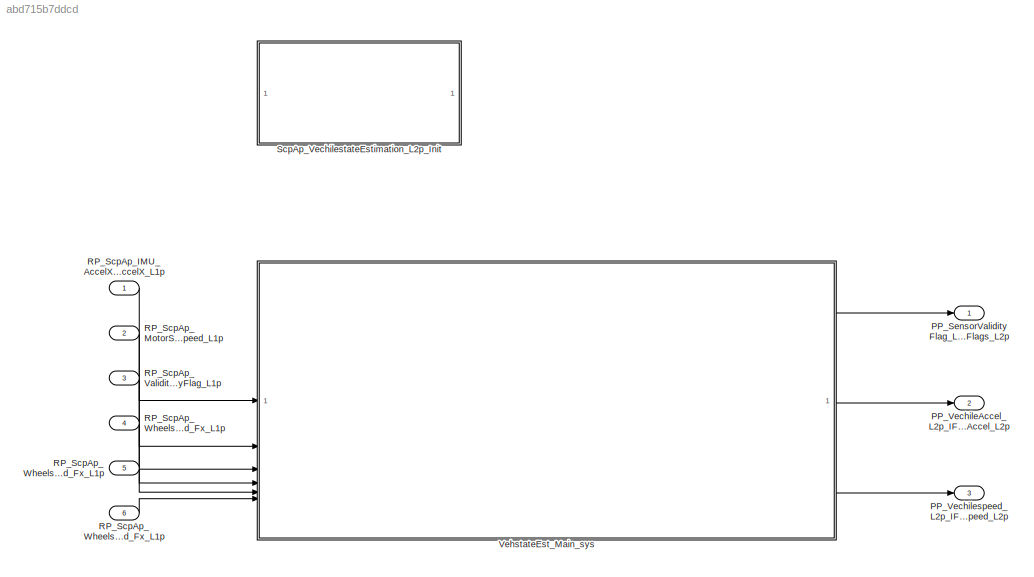
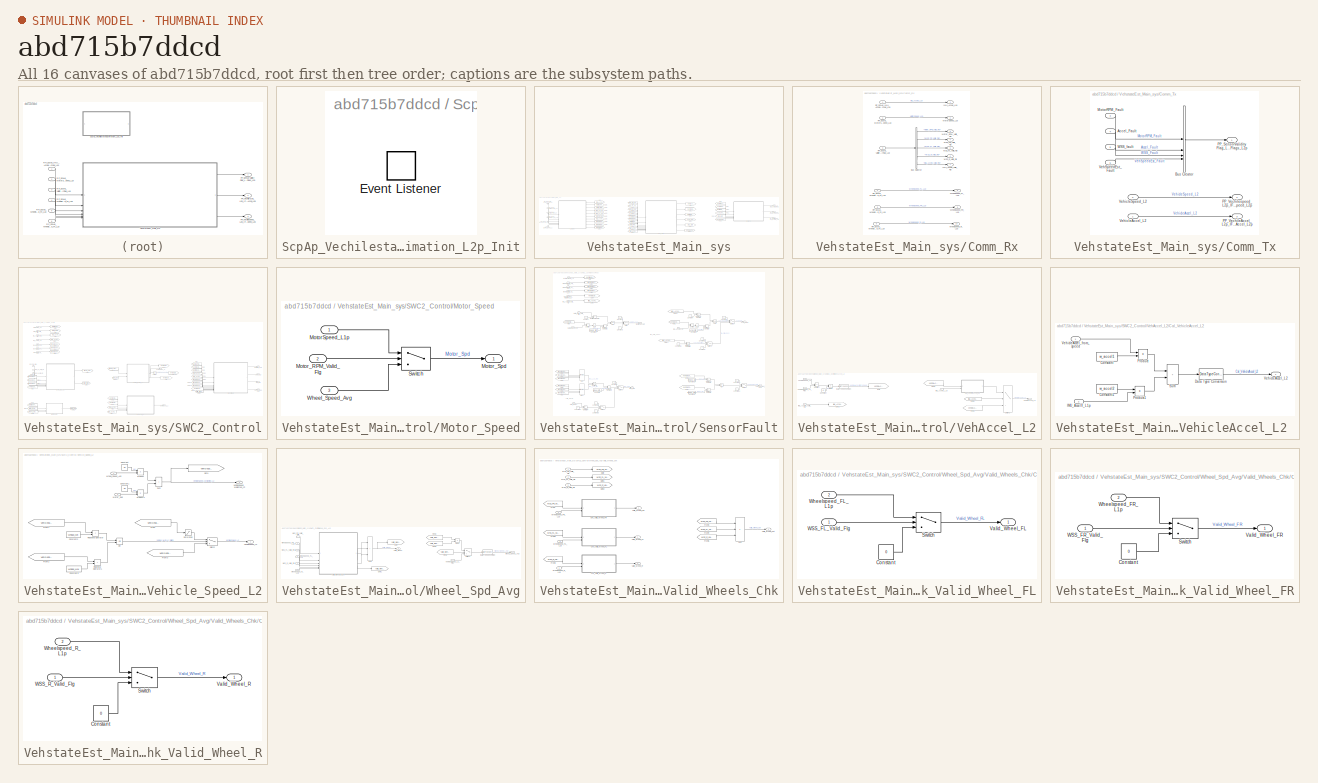
[diagram: thumbnail index - all 16 canvases of the model, root first then tree order]
MODEL slx_abd715b7ddcd
KIND model
CONFIG AbsTol = auto
CONFIG EnableMultiTasking = off
CONFIG FixedStep = 0.01
CONFIG MaxStep = auto
CONFIG MinStep = auto
CONFIG RelTol = 1e-3
CONFIG SampleTimeConstraint = Unconstrained
CONFIG SolverName = FixedStepDiscrete
CONFIG StartTime = 0.0
CONFIG StopTime = 10.0
WORKSPACE source: mxarray member
WORKSPACE Accel_Diff_Th: Simulink.Parameter (value not decoded)
WORKSPACE Speed_Diff_Th: Simulink.Parameter (value not decoded)
WORKSPACE W1: Simulink.Parameter (value not decoded)
WORKSPACE W2: Simulink.Parameter (value not decoded)
WORKSPACE Wheel_Diff_Th: Simulink.Parameter (value not decoded)
BLOCK [Outport] PP_SensorValidityFlag_L2p_IF_SensorFaultFlags_L2p
  BusOutputAsStruct = on
  OutDataTypeStr = Bus: IF_SensorFaultFlgs_L2p_IDT
  PortDimensions = 1
  SamplingMode = Sample based
BLOCK [Outport] PP_VechileAccel_L2p_IF_VechileAccel_L2p
  OutDataTypeStr = int16
  Port = 2
  PortDimensions = 1
  SamplingMode = Sample based
  SignalType = real
BLOCK [Outport] PP_Vechilespeed_L2p_IF_Vechilespeed_L2p
  OutDataTypeStr = uint16
  Port = 3
  PortDimensions = 1
  SamplingMode = Sample based
  SignalType = real
BLOCK [Inport] RP_ScpAp_IMU_AccelX_L1_IF_IMU_AccelX_L1p
  OutDataTypeStr = single
  PortDimensions = 1
  SamplingMode = Sample based
  SignalType = real
BLOCK [Inport] RP_ScpAp_MotorSpeed_L1p_IF_MotorSpeed_L1p
  OutDataTypeStr = uint8
  Port = 2
  PortDimensions = 1
  SamplingMode = Sample based
  SignalType = real
BLOCK [Inport] RP_ScpAp_ValidityFlag_L1p_IF_ValidityFlag_L1p
  BusOutputAsStruct = on
  OutDataTypeStr = Bus: IF_ValidityFlag_L1p_IDT
  Port = 3
  PortDimensions = 1
  SamplingMode = Sample based
BLOCK [Inport] RP_ScpAp_Wheelspeed_FL_L1p_IF_Wheelspeed_Fx_L1p
  OutDataTypeStr = uint16
  Port = 4
  PortDimensions = 1
  SamplingMode = Sample based
  SignalType = real
BLOCK [Inport] RP_ScpAp_Wheelspeed_FR_L1p_IF_Wheelspeed_Fx_L1p
  OutDataTypeStr = uint16
  Port = 5
  PortDimensions = 1
  SamplingMode = Sample based
  SignalType = real
BLOCK [Inport] RP_ScpAp_Wheelspeed_R_L1p_IF_Wheelspeed_Fx_L1p
  OutDataTypeStr = uint16
  Port = 6
  PortDimensions = 1
  SamplingMode = Sample based
  SignalType = real
BLOCK [SubSystem] ScpAp_VechilestateEstimation_L2p_Init
BLOCK [EventListener] ScpAp_VechilestateEstimation_L2p_Init/Event Listener
  EventName = reset
BLOCK [SubSystem] VehstateEst_Main_sys
  SystemSampleTime = 0.01
  TreatAsAtomicUnit = on
BLOCK [SubSystem] VehstateEst_Main_sys/Comm_Rx
  TreatAsAtomicUnit = on
BLOCK [BusSelector] VehstateEst_Main_sys/Comm_Rx/Bus Selector
  OutputSignals = Motor_RPM_Valid_Flg,WSS_FR_Valid_Flg,WSS_FL_Valid_Flg,WSS_R_Valid_Flg,IMU_AccelX_Valid_Flg
BLOCK [Outport] VehstateEst_Main_sys/Comm_Rx/IMU_AccelX_L1p
  OutDataTypeStr = single
  SignalType = real
BLOCK [Outport] VehstateEst_Main_sys/Comm_Rx/IMU_AccelX_Valid_Flg
  Port = 7
BLOCK [Outport] VehstateEst_Main_sys/Comm_Rx/MotorSpeed_L1p
  Port = 2
BLOCK [Outport] VehstateEst_Main_sys/Comm_Rx/Motor_RPM_Valid_Flg
  Port = 3
BLOCK [Inport] VehstateEst_Main_sys/Comm_Rx/RP_ScpAp_IMU_AccelX_L1_IF_IMU_AccelX_L1p
  OutDataTypeStr = single
  SignalType = real
BLOCK [Inport] VehstateEst_Main_sys/Comm_Rx/RP_ScpAp_MotorSpeed_L1p_IF_MotorSpeed_L1p
  Port = 2
BLOCK [Inport] VehstateEst_Main_sys/Comm_Rx/RP_ScpAp_ValidityFlag_L1p_IF_ValidityFlag_L1p
  Port = 3
BLOCK [Inport] VehstateEst_Main_sys/Comm_Rx/RP_ScpAp_Wheelspeed_FL_L1p_IF_Wheelspeed_Fx_L1p
  Port = 4
BLOCK [Inport] VehstateEst_Main_sys/Comm_Rx/RP_ScpAp_Wheelspeed_FR_L1p_IF_Wheelspeed_Fx_L1p
  Port = 5
BLOCK [Inport] VehstateEst_Main_sys/Comm_Rx/RP_ScpAp_Wheelspeed_R_L1p_IF_Wheelspeed_Fx_L1p
  Port = 6
BLOCK [Outport] VehstateEst_Main_sys/Comm_Rx/WSS_FL_Valid_Flg
  Port = 5
BLOCK [Outport] VehstateEst_Main_sys/Comm_Rx/WSS_FR_Valid_Flg
  Port = 4
BLOCK [Outport] VehstateEst_Main_sys/Comm_Rx/WSS_R_Valid_Flg
  Port = 6
BLOCK [Outport] VehstateEst_Main_sys/Comm_Rx/Wheelspeed_FL_L1p
  Port = 8
BLOCK [Outport] VehstateEst_Main_sys/Comm_Rx/Wheelspeed_FR_L1p
  Port = 9
BLOCK [Outport] VehstateEst_Main_sys/Comm_Rx/Wheelspeed_R_L1p
  Port = 10
BLOCK [SubSystem] VehstateEst_Main_sys/Comm_Tx
  TreatAsAtomicUnit = on
BLOCK [Inport] VehstateEst_Main_sys/Comm_Tx/Accel_Fault
  Port = 4
BLOCK [BusCreator] VehstateEst_Main_sys/Comm_Tx/Bus Creator
  DisplayOption = bar
  InheritFromInputs = on
  Inputs = 4
BLOCK [Inport] VehstateEst_Main_sys/Comm_Tx/MotorRPM_Fault
  Port = 3
BLOCK [Outport] VehstateEst_Main_sys/Comm_Tx/PP_SensorValidityFlag_L2p_IF_SensorFaultFlags_L2p
BLOCK [Outport] VehstateEst_Main_sys/Comm_Tx/PP_VechileAccel_L2p_IF_VechileAccel_L2p
  Port = 3
BLOCK [Outport] VehstateEst_Main_sys/Comm_Tx/PP_Vechilespeed_L2p_IF_Vechilespeed_L2p
  Port = 2
BLOCK [Inport] VehstateEst_Main_sys/Comm_Tx/VehSpeedEst_Fault
  Port = 6
BLOCK [Inport] VehstateEst_Main_sys/Comm_Tx/VehicleAccel_L2
BLOCK [Inport] VehstateEst_Main_sys/Comm_Tx/VehicleSpeed_L2
  Port = 2
BLOCK [Inport] VehstateEst_Main_sys/Comm_Tx/WSS_fault
  Port = 5
BLOCK [From] VehstateEst_Main_sys/From
  GotoTag = WSS_FR_Valid_Flg
BLOCK [From] VehstateEst_Main_sys/From1
  GotoTag = WSS_FL_Valid_Flg
BLOCK [From] VehstateEst_Main_sys/From10
  GotoTag = MotorRPM_Fault
BLOCK [From] VehstateEst_Main_sys/From11
  GotoTag = Accel_Fault
BLOCK [From] VehstateEst_Main_sys/From12
  GotoTag = WSS_fault
BLOCK [From] VehstateEst_Main_sys/From13
  GotoTag = IMU_AccelX_Valid_Flg
BLOCK [From] VehstateEst_Main_sys/From14
  GotoTag = IMU_AccelX_L1p
BLOCK [From] VehstateEst_Main_sys/From15
  GotoTag = VehSpeedEst_Fault
BLOCK [From] VehstateEst_Main_sys/From2
  GotoTag = WSS_R_Valid_Flg
BLOCK [From] VehstateEst_Main_sys/From3
  GotoTag = Wheelspeed_FL_L1p
BLOCK [From] VehstateEst_Main_sys/From4
  GotoTag = Wheelspeed_FR_L1p
BLOCK [From] VehstateEst_Main_sys/From5
  GotoTag = Wheelspeed_R_L1p
BLOCK [From] VehstateEst_Main_sys/From6
  GotoTag = Motor_RPM_Valid_Flg
BLOCK [From] VehstateEst_Main_sys/From7
  GotoTag = MotorSpeed_L1p
BLOCK [From] VehstateEst_Main_sys/From8
  GotoTag = VehicleAccel_L2
BLOCK [From] VehstateEst_Main_sys/From9
  GotoTag = VehicleSpeed_L2
BLOCK [Goto] VehstateEst_Main_sys/Goto
  GotoTag = IMU_AccelX_L1p
BLOCK [Goto] VehstateEst_Main_sys/Goto1
  GotoTag = MotorSpeed_L1p
BLOCK [Goto] VehstateEst_Main_sys/Goto10
  GotoTag = Wheelspeed_R_L1p
BLOCK [Goto] VehstateEst_Main_sys/Goto11
  GotoTag = VehicleSpeed_L2
BLOCK [Goto] VehstateEst_Main_sys/Goto12
  GotoTag = MotorRPM_Fault
BLOCK [Goto] VehstateEst_Main_sys/Goto13
  GotoTag = Accel_Fault
BLOCK [Goto] VehstateEst_Main_sys/Goto14
  GotoTag = WSS_fault
BLOCK [Goto] VehstateEst_Main_sys/Goto15
  GotoTag = VehSpeedEst_Fault
BLOCK [Goto] VehstateEst_Main_sys/Goto2
  GotoTag = Motor_RPM_Valid_Flg
BLOCK [Goto] VehstateEst_Main_sys/Goto3
  GotoTag = WSS_FR_Valid_Flg
BLOCK [Goto] VehstateEst_Main_sys/Goto4
  GotoTag = WSS_FL_Valid_Flg
BLOCK [Goto] VehstateEst_Main_sys/Goto5
  GotoTag = WSS_R_Valid_Flg
BLOCK [Goto] VehstateEst_Main_sys/Goto6
  GotoTag = IMU_AccelX_Valid_Flg
BLOCK [Goto] VehstateEst_Main_sys/Goto7
  GotoTag = VehicleAccel_L2
BLOCK [Goto] VehstateEst_Main_sys/Goto8
  GotoTag = Wheelspeed_FL_L1p
BLOCK [Goto] VehstateEst_Main_sys/Goto9
  GotoTag = Wheelspeed_FR_L1p
BLOCK [Outport] VehstateEst_Main_sys/PP_SensorValidityFlag_L2p_IF_SensorFaultFlags_L2p
BLOCK [Outport] VehstateEst_Main_sys/PP_VechileAccel_L2p_IF_VechileAccel_L2p
  Port = 2
BLOCK [Outport] VehstateEst_Main_sys/PP_Vechilespeed_L2p_IF_Vechilespeed_L2p
  Port = 3
BLOCK [Inport] VehstateEst_Main_sys/RP_ScpAp_IMU_AccelX_L1_IF_IMU_AccelX_L1p
BLOCK [Inport] VehstateEst_Main_sys/RP_ScpAp_MotorSpeed_L1p_IF_MotorSpeed_L1p
  Port = 2
BLOCK [Inport] VehstateEst_Main_sys/RP_ScpAp_ValidityFlag_L1p_IF_ValidityFlag_L1p
  Port = 3
BLOCK [Inport] VehstateEst_Main_sys/RP_ScpAp_Wheelspeed_FL_L1p_IF_Wheelspeed_Fx_L1p
  Port = 4
BLOCK [Inport] VehstateEst_Main_sys/RP_ScpAp_Wheelspeed_FR_L1p_IF_Wheelspeed_Fx_L1p
  Port = 5
BLOCK [Inport] VehstateEst_Main_sys/RP_ScpAp_Wheelspeed_R_L1p_IF_Wheelspeed_Fx_L1p
  Port = 6
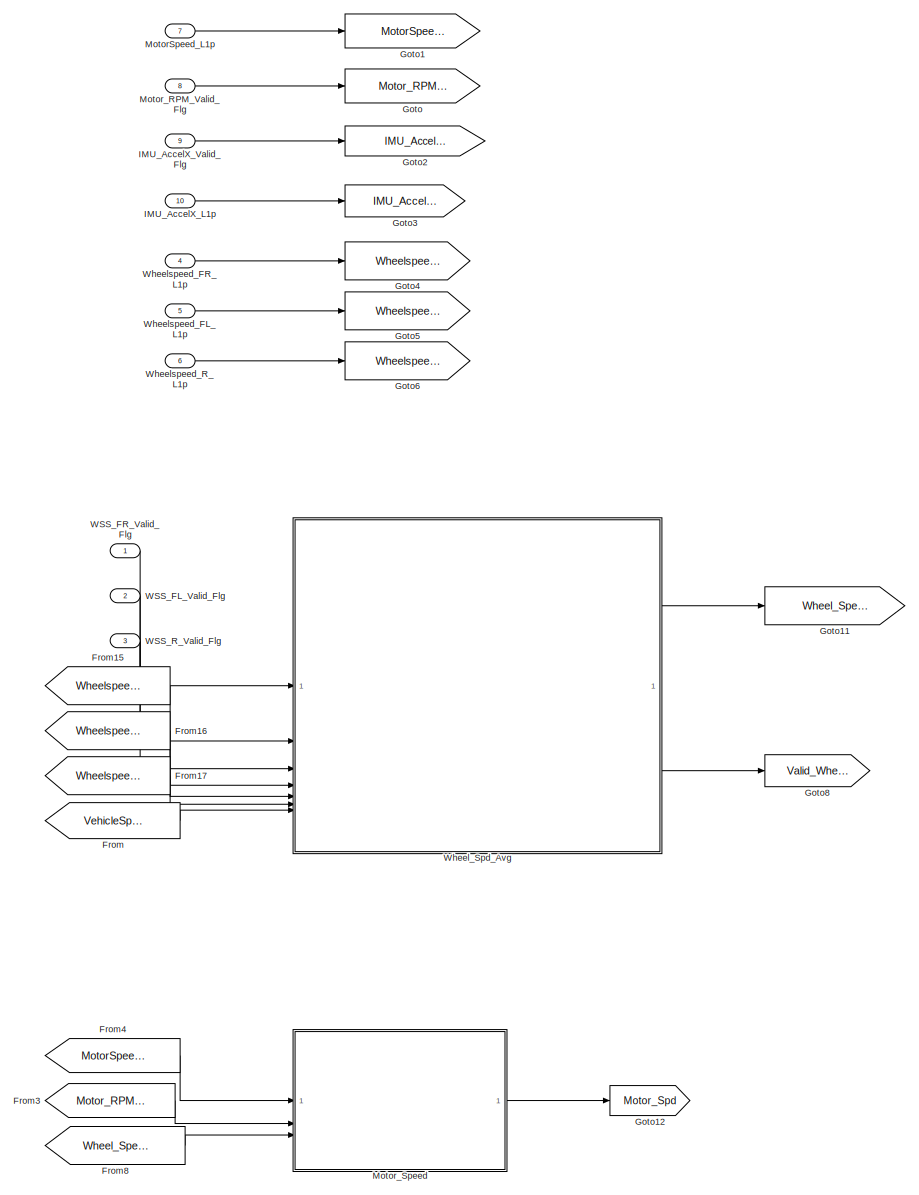
[diagram: VehstateEst_Main_sys/SWC2_Control - part 1/3, left side, full height]
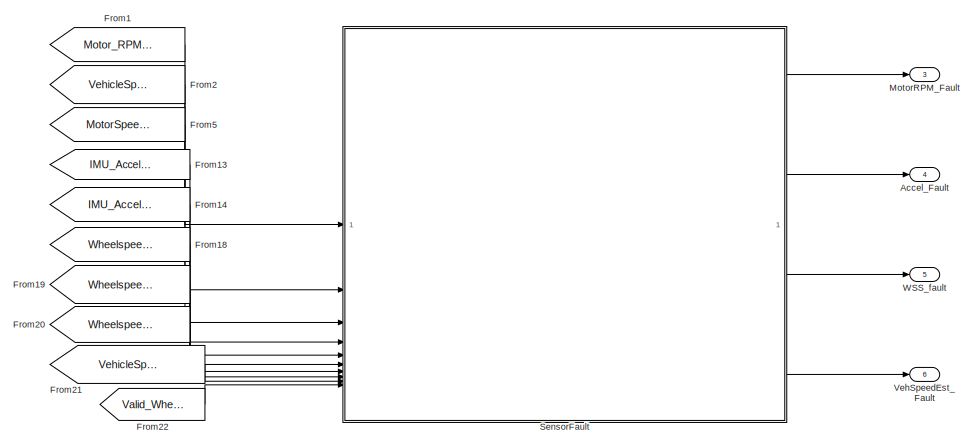
[diagram: VehstateEst_Main_sys/SWC2_Control - part 2/3, middle right region]
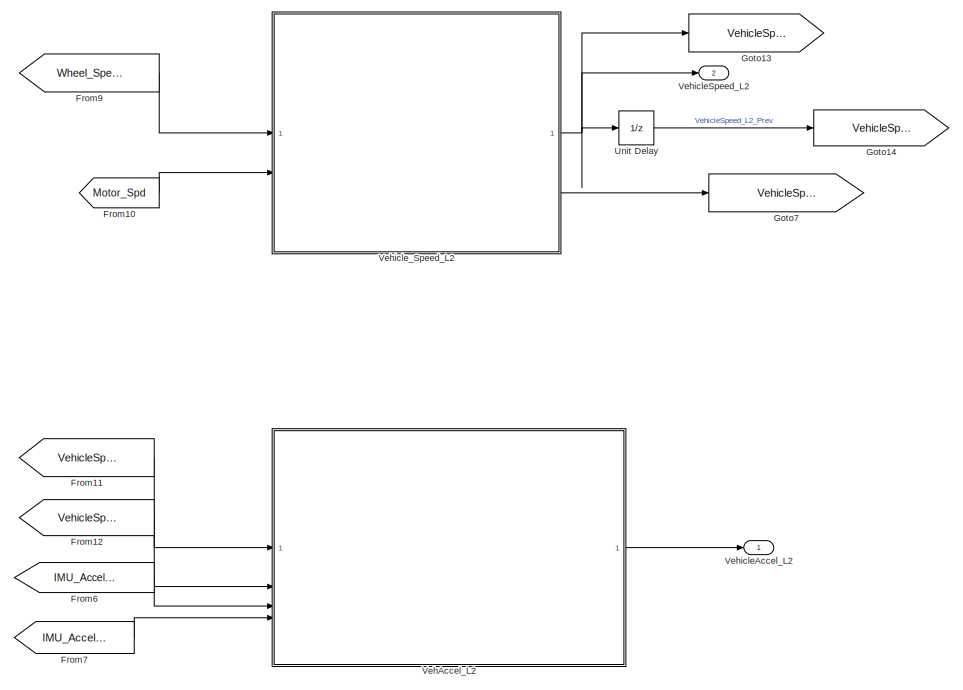
[diagram: VehstateEst_Main_sys/SWC2_Control - part 3/3, bottom center region]
BLOCK [SubSystem] VehstateEst_Main_sys/SWC2_Control
  TreatAsAtomicUnit = on
BLOCK [Outport] VehstateEst_Main_sys/SWC2_Control/Accel_Fault
  Port = 4
BLOCK [From] VehstateEst_Main_sys/SWC2_Control/From
  GotoTag = VehicleSpeed_L2_Prev
BLOCK [From] VehstateEst_Main_sys/SWC2_Control/From1
  GotoTag = Motor_RPM_Valid_Flg
BLOCK [From] VehstateEst_Main_sys/SWC2_Control/From10
  GotoTag = Motor_Spd
BLOCK [From] VehstateEst_Main_sys/SWC2_Control/From11
  GotoTag = VehicleSpeed_L2
  TagVisibility = global
BLOCK [From] VehstateEst_Main_sys/SWC2_Control/From12
  GotoTag = VehicleSpeed_L2_Prev
BLOCK [From] VehstateEst_Main_sys/SWC2_Control/From13
  GotoTag = IMU_AccelX_Valid_Flg
BLOCK [From] VehstateEst_Main_sys/SWC2_Control/From14
  GotoTag = IMU_AccelX_L1p
BLOCK [From] VehstateEst_Main_sys/SWC2_Control/From15
  GotoTag = Wheelspeed_FR_L1p
BLOCK [From] VehstateEst_Main_sys/SWC2_Control/From16
  GotoTag = Wheelspeed_FL_L1p
BLOCK [From] VehstateEst_Main_sys/SWC2_Control/From17
  GotoTag = Wheelspeed_R_L1p
BLOCK [From] VehstateEst_Main_sys/SWC2_Control/From18
  GotoTag = Wheelspeed_FR_L1p
BLOCK [From] VehstateEst_Main_sys/SWC2_Control/From19
  GotoTag = Wheelspeed_FL_L1p
BLOCK [From] VehstateEst_Main_sys/SWC2_Control/From2
  GotoTag = VehicleSpeed_L2
  TagVisibility = global
BLOCK [From] VehstateEst_Main_sys/SWC2_Control/From20
  GotoTag = Wheelspeed_R_L1p
BLOCK [From] VehstateEst_Main_sys/SWC2_Control/From21
  GotoTag = VehicleSpeed_Weighted_L2
BLOCK [From] VehstateEst_Main_sys/SWC2_Control/From22
  GotoTag = Valid_Wheel
BLOCK [From] VehstateEst_Main_sys/SWC2_Control/From3
  GotoTag = Motor_RPM_Valid_Flg
BLOCK [From] VehstateEst_Main_sys/SWC2_Control/From4
  GotoTag = MotorSpeed_L1p
BLOCK [From] VehstateEst_Main_sys/SWC2_Control/From5
  GotoTag = MotorSpeed_L1p
BLOCK [From] VehstateEst_Main_sys/SWC2_Control/From6
  GotoTag = IMU_AccelX_Valid_Flg
BLOCK [From] VehstateEst_Main_sys/SWC2_Control/From7
  GotoTag = IMU_AccelX_L1p
BLOCK [From] VehstateEst_Main_sys/SWC2_Control/From8
  GotoTag = Wheel_Speed_Avg
BLOCK [From] VehstateEst_Main_sys/SWC2_Control/From9
  GotoTag = Wheel_Speed_Avg
BLOCK [Goto] VehstateEst_Main_sys/SWC2_Control/Goto
  GotoTag = Motor_RPM_Valid_Flg
BLOCK [Goto] VehstateEst_Main_sys/SWC2_Control/Goto1
  GotoTag = MotorSpeed_L1p
BLOCK [Goto] VehstateEst_Main_sys/SWC2_Control/Goto11
  GotoTag = Wheel_Speed_Avg
BLOCK [Goto] VehstateEst_Main_sys/SWC2_Control/Goto12
  GotoTag = Motor_Spd
BLOCK [Goto] VehstateEst_Main_sys/SWC2_Control/Goto13
  GotoTag = VehicleSpeed_L2
  TagVisibility = global
BLOCK [Goto] VehstateEst_Main_sys/SWC2_Control/Goto14
  GotoTag = VehicleSpeed_L2_Prev
BLOCK [Goto] VehstateEst_Main_sys/SWC2_Control/Goto2
  GotoTag = IMU_AccelX_Valid_Flg
BLOCK [Goto] VehstateEst_Main_sys/SWC2_Control/Goto3
  GotoTag = IMU_AccelX_L1p
BLOCK [Goto] VehstateEst_Main_sys/SWC2_Control/Goto4
  GotoTag = Wheelspeed_FR_L1p
BLOCK [Goto] VehstateEst_Main_sys/SWC2_Control/Goto5
  GotoTag = Wheelspeed_FL_L1p
BLOCK [Goto] VehstateEst_Main_sys/SWC2_Control/Goto6
  GotoTag = Wheelspeed_R_L1p
BLOCK [Goto] VehstateEst_Main_sys/SWC2_Control/Goto7
  GotoTag = VehicleSpeed_Weighted_L2
BLOCK [Goto] VehstateEst_Main_sys/SWC2_Control/Goto8
  GotoTag = Valid_Wheel
BLOCK [Inport] VehstateEst_Main_sys/SWC2_Control/IMU_AccelX_L1p
  Port = 10
BLOCK [Inport] VehstateEst_Main_sys/SWC2_Control/IMU_AccelX_Valid_Flg
  Port = 9
BLOCK [Outport] VehstateEst_Main_sys/SWC2_Control/MotorRPM_Fault 
  Port = 3
BLOCK [Inport] VehstateEst_Main_sys/SWC2_Control/MotorSpeed_L1p
  Port = 7
BLOCK [Inport] VehstateEst_Main_sys/SWC2_Control/Motor_RPM_Valid_Flg
  Port = 8
BLOCK [SubSystem] VehstateEst_Main_sys/SWC2_Control/Motor_Speed
  TreatAsAtomicUnit = on
BLOCK [Inport] VehstateEst_Main_sys/SWC2_Control/Motor_Speed/MotorSpeed_L1p
BLOCK [Inport] VehstateEst_Main_sys/SWC2_Control/Motor_Speed/Motor_RPM_Valid_Flg
  Port = 2
BLOCK [Outport] VehstateEst_Main_sys/SWC2_Control/Motor_Speed/Motor_Spd
BLOCK [Switch] VehstateEst_Main_sys/SWC2_Control/Motor_Speed/Switch
  Criteria = u2 > Threshold
  InputSameDT = off
  SaturateOnIntegerOverflow = off
BLOCK [Inport] VehstateEst_Main_sys/SWC2_Control/Motor_Speed/Wheel_Speed_Avg
  Port = 3
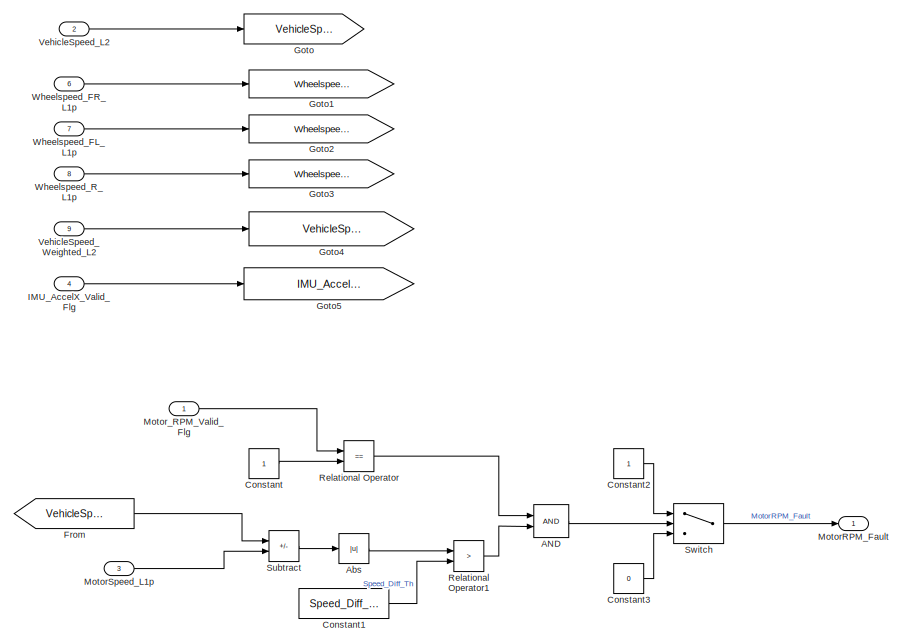
[diagram: VehstateEst_Main_sys/SWC2_Control/SensorFault - part 1/4, top left region]
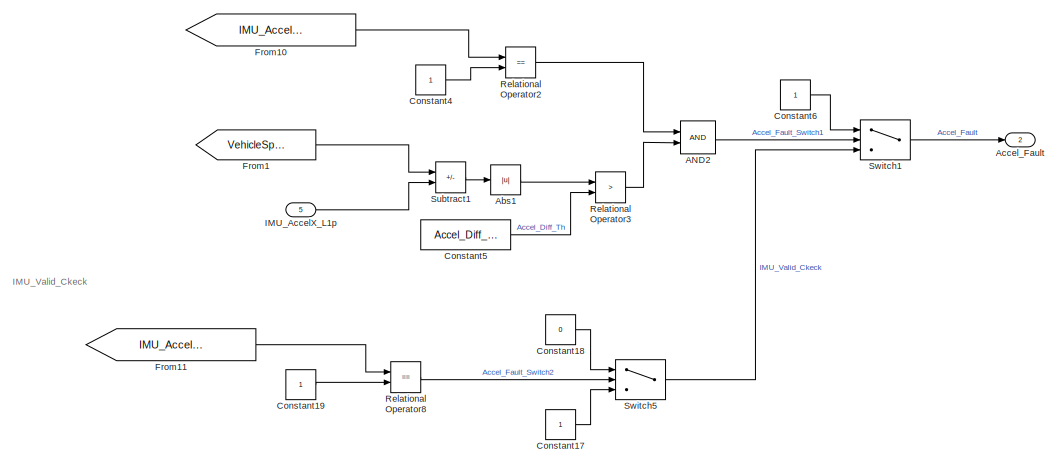
[diagram: VehstateEst_Main_sys/SWC2_Control/SensorFault - part 2/4, middle right region]
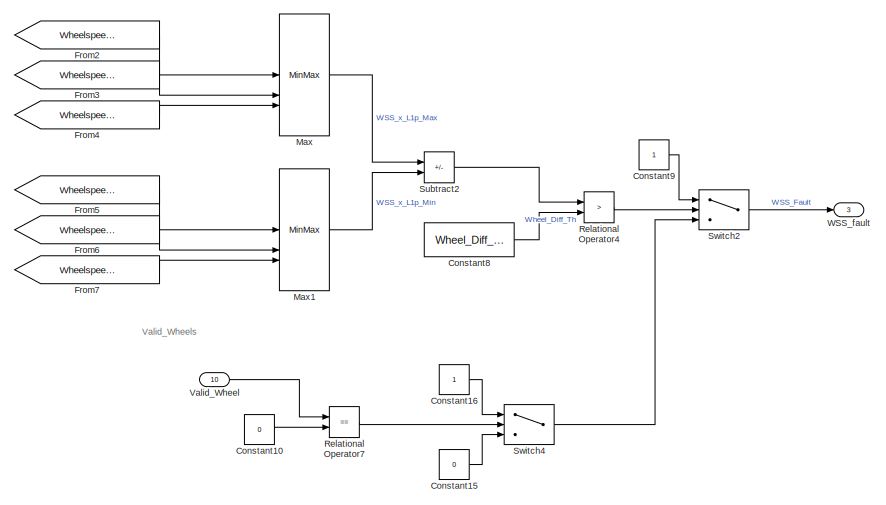
[diagram: VehstateEst_Main_sys/SWC2_Control/SensorFault - part 3/4, bottom left region]
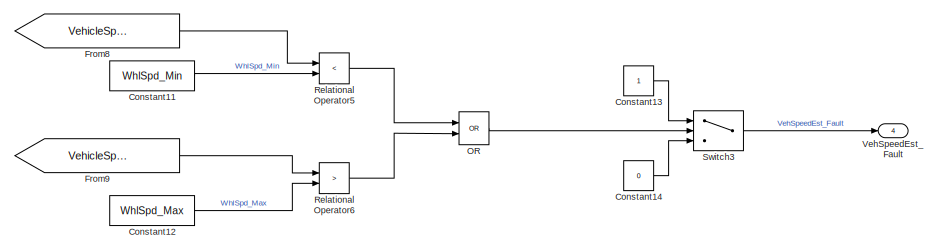
[diagram: VehstateEst_Main_sys/SWC2_Control/SensorFault - part 4/4, bottom right region]
BLOCK [SubSystem] VehstateEst_Main_sys/SWC2_Control/SensorFault
  TreatAsAtomicUnit = on
BLOCK [Logic] VehstateEst_Main_sys/SWC2_Control/SensorFault/AND
  AllPortsSameDT = off
  OutDataTypeStr = boolean
BLOCK [Logic] VehstateEst_Main_sys/SWC2_Control/SensorFault/AND2
  AllPortsSameDT = off
  OutDataTypeStr = boolean
BLOCK [Abs] VehstateEst_Main_sys/SWC2_Control/SensorFault/Abs
  SaturateOnIntegerOverflow = off
BLOCK [Abs] VehstateEst_Main_sys/SWC2_Control/SensorFault/Abs1
  SaturateOnIntegerOverflow = off
BLOCK [Outport] VehstateEst_Main_sys/SWC2_Control/SensorFault/Accel_Fault
  Port = 2
BLOCK [Constant] VehstateEst_Main_sys/SWC2_Control/SensorFault/Constant
BLOCK [Constant] VehstateEst_Main_sys/SWC2_Control/SensorFault/Constant1
  Value = Speed_Diff_Th
BLOCK [Constant] VehstateEst_Main_sys/SWC2_Control/SensorFault/Constant10
  Value = 0
BLOCK [Constant] VehstateEst_Main_sys/SWC2_Control/SensorFault/Constant11
  Value = WhlSpd_Min
BLOCK [Constant] VehstateEst_Main_sys/SWC2_Control/SensorFault/Constant12
  Value = WhlSpd_Max
BLOCK [Constant] VehstateEst_Main_sys/SWC2_Control/SensorFault/Constant13
  OutDataTypeStr = boolean
BLOCK [Constant] VehstateEst_Main_sys/SWC2_Control/SensorFault/Constant14
  OutDataTypeStr = boolean
  Value = 0
BLOCK [Constant] VehstateEst_Main_sys/SWC2_Control/SensorFault/Constant15
  OutDataTypeStr = boolean
  Value = 0
BLOCK [Constant] VehstateEst_Main_sys/SWC2_Control/SensorFault/Constant16
  OutDataTypeStr = boolean
BLOCK [Constant] VehstateEst_Main_sys/SWC2_Control/SensorFault/Constant17
  OutDataTypeStr = boolean
BLOCK [Constant] VehstateEst_Main_sys/SWC2_Control/SensorFault/Constant18
  OutDataTypeStr = boolean
  Value = 0
BLOCK [Constant] VehstateEst_Main_sys/SWC2_Control/SensorFault/Constant19
BLOCK [Constant] VehstateEst_Main_sys/SWC2_Control/SensorFault/Constant2
  OutDataTypeStr = boolean
BLOCK [Constant] VehstateEst_Main_sys/SWC2_Control/SensorFault/Constant3
  OutDataTypeStr = boolean
  Value = 0
BLOCK [Constant] VehstateEst_Main_sys/SWC2_Control/SensorFault/Constant4
BLOCK [Constant] VehstateEst_Main_sys/SWC2_Control/SensorFault/Constant5
  Value = Accel_Diff_Th
BLOCK [Constant] VehstateEst_Main_sys/SWC2_Control/SensorFault/Constant6
  OutDataTypeStr = boolean
BLOCK [Constant] VehstateEst_Main_sys/SWC2_Control/SensorFault/Constant8
  Value = Wheel_Diff_Th
BLOCK [Constant] VehstateEst_Main_sys/SWC2_Control/SensorFault/Constant9
  OutDataTypeStr = boolean
BLOCK [From] VehstateEst_Main_sys/SWC2_Control/SensorFault/From
  GotoTag = VehicleSpeed_L2
BLOCK [From] VehstateEst_Main_sys/SWC2_Control/SensorFault/From1
  GotoTag = VehicleSpeed_L2
BLOCK [From] VehstateEst_Main_sys/SWC2_Control/SensorFault/From10
  GotoTag = IMU_AccelX_Valid_Flg
BLOCK [From] VehstateEst_Main_sys/SWC2_Control/SensorFault/From11
  GotoTag = IMU_AccelX_Valid_Flg
BLOCK [From] VehstateEst_Main_sys/SWC2_Control/SensorFault/From2
  GotoTag = Wheelspeed_FR_L1p
BLOCK [From] VehstateEst_Main_sys/SWC2_Control/SensorFault/From3
  GotoTag = Wheelspeed_FL_L1p
BLOCK [From] VehstateEst_Main_sys/SWC2_Control/SensorFault/From4
  GotoTag = Wheelspeed_R_L1p
BLOCK [From] VehstateEst_Main_sys/SWC2_Control/SensorFault/From5
  GotoTag = Wheelspeed_FR_L1p
BLOCK [From] VehstateEst_Main_sys/SWC2_Control/SensorFault/From6
  GotoTag = Wheelspeed_FL_L1p
BLOCK [From] VehstateEst_Main_sys/SWC2_Control/SensorFault/From7
  GotoTag = Wheelspeed_R_L1p
BLOCK [From] VehstateEst_Main_sys/SWC2_Control/SensorFault/From8
  GotoTag = VehicleSpeed_Weighted_L2
BLOCK [From] VehstateEst_Main_sys/SWC2_Control/SensorFault/From9
  GotoTag = VehicleSpeed_Weighted_L2
BLOCK [Goto] VehstateEst_Main_sys/SWC2_Control/SensorFault/Goto
  GotoTag = VehicleSpeed_L2
BLOCK [Goto] VehstateEst_Main_sys/SWC2_Control/SensorFault/Goto1
  GotoTag = Wheelspeed_FR_L1p
BLOCK [Goto] VehstateEst_Main_sys/SWC2_Control/SensorFault/Goto2
  GotoTag = Wheelspeed_FL_L1p
BLOCK [Goto] VehstateEst_Main_sys/SWC2_Control/SensorFault/Goto3
  GotoTag = Wheelspeed_R_L1p
BLOCK [Goto] VehstateEst_Main_sys/SWC2_Control/SensorFault/Goto4
  GotoTag = VehicleSpeed_Weighted_L2
BLOCK [Goto] VehstateEst_Main_sys/SWC2_Control/SensorFault/Goto5
  GotoTag = IMU_AccelX_Valid_Flg
BLOCK [Inport] VehstateEst_Main_sys/SWC2_Control/SensorFault/IMU_AccelX_L1p
  OutDataTypeStr = single
  Port = 5
BLOCK [Inport] VehstateEst_Main_sys/SWC2_Control/SensorFault/IMU_AccelX_Valid_Flg
  Port = 4
BLOCK [MinMax] VehstateEst_Main_sys/SWC2_Control/SensorFault/Max
  Function = max
  Inputs = 3
BLOCK [MinMax] VehstateEst_Main_sys/SWC2_Control/SensorFault/Max1
  Inputs = 3
BLOCK [Outport] VehstateEst_Main_sys/SWC2_Control/SensorFault/MotorRPM_Fault 
BLOCK [Inport] VehstateEst_Main_sys/SWC2_Control/SensorFault/MotorSpeed_L1p
  Port = 3
BLOCK [Inport] VehstateEst_Main_sys/SWC2_Control/SensorFault/Motor_RPM_Valid_Flg
BLOCK [Logic] VehstateEst_Main_sys/SWC2_Control/SensorFault/OR
  AllPortsSameDT = off
  Operator = OR
  OutDataTypeStr = boolean
BLOCK [RelationalOperator] VehstateEst_Main_sys/SWC2_Control/SensorFault/Relational Operator
  InputSameDT = off
  Operator = ==
  OutDataTypeStr = boolean
  RndMeth = Simplest
BLOCK [RelationalOperator] VehstateEst_Main_sys/SWC2_Control/SensorFault/Relational Operator1
  InputSameDT = off
  Operator = >
  OutDataTypeStr = boolean
  RndMeth = Simplest
BLOCK [RelationalOperator] VehstateEst_Main_sys/SWC2_Control/SensorFault/Relational Operator2
  InputSameDT = off
  Operator = ==
  OutDataTypeStr = boolean
  RndMeth = Simplest
BLOCK [RelationalOperator] VehstateEst_Main_sys/SWC2_Control/SensorFault/Relational Operator3
  InputSameDT = off
  Operator = >
  OutDataTypeStr = boolean
  RndMeth = Simplest
BLOCK [RelationalOperator] VehstateEst_Main_sys/SWC2_Control/SensorFault/Relational Operator4
  InputSameDT = off
  Operator = >
  OutDataTypeStr = boolean
  RndMeth = Simplest
BLOCK [RelationalOperator] VehstateEst_Main_sys/SWC2_Control/SensorFault/Relational Operator5
  InputSameDT = off
  Operator = <
  OutDataTypeStr = boolean
  RndMeth = Simplest
BLOCK [RelationalOperator] VehstateEst_Main_sys/SWC2_Control/SensorFault/Relational Operator6
  InputSameDT = off
  Operator = >
  OutDataTypeStr = boolean
  RndMeth = Simplest
BLOCK [RelationalOperator] VehstateEst_Main_sys/SWC2_Control/SensorFault/Relational Operator7
  InputSameDT = off
  Operator = ==
  OutDataTypeStr = boolean
  RndMeth = Simplest
BLOCK [RelationalOperator] VehstateEst_Main_sys/SWC2_Control/SensorFault/Relational Operator8
  InputSameDT = off
  Operator = ==
  OutDataTypeStr = boolean
  RndMeth = Simplest
BLOCK [Sum] VehstateEst_Main_sys/SWC2_Control/SensorFault/Subtract
  IconShape = rectangular
  Inputs = +-
BLOCK [Sum] VehstateEst_Main_sys/SWC2_Control/SensorFault/Subtract1
  IconShape = rectangular
  Inputs = +-
BLOCK [Sum] VehstateEst_Main_sys/SWC2_Control/SensorFault/Subtract2
  IconShape = rectangular
  Inputs = +-
BLOCK [Switch] VehstateEst_Main_sys/SWC2_Control/SensorFault/Switch
  Criteria = u2 > Threshold
  InputSameDT = off
  SaturateOnIntegerOverflow = off
BLOCK [Switch] VehstateEst_Main_sys/SWC2_Control/SensorFault/Switch1
  Criteria = u2 > Threshold
  InputSameDT = off
  SaturateOnIntegerOverflow = off
BLOCK [Switch] VehstateEst_Main_sys/SWC2_Control/SensorFault/Switch2
  Criteria = u2 > Threshold
  InputSameDT = off
  SaturateOnIntegerOverflow = off
BLOCK [Switch] VehstateEst_Main_sys/SWC2_Control/SensorFault/Switch3
  Criteria = u2 > Threshold
  InputSameDT = off
  SaturateOnIntegerOverflow = off
BLOCK [Switch] VehstateEst_Main_sys/SWC2_Control/SensorFault/Switch4
  Criteria = u2 > Threshold
  InputSameDT = off
  SaturateOnIntegerOverflow = off
BLOCK [Switch] VehstateEst_Main_sys/SWC2_Control/SensorFault/Switch5
  Criteria = u2 > Threshold
  InputSameDT = off
  SaturateOnIntegerOverflow = off
BLOCK [Inport] VehstateEst_Main_sys/SWC2_Control/SensorFault/Valid_Wheel
  Port = 10
BLOCK [Outport] VehstateEst_Main_sys/SWC2_Control/SensorFault/VehSpeedEst_Fault
  Port = 4
BLOCK [Inport] VehstateEst_Main_sys/SWC2_Control/SensorFault/VehicleSpeed_L2
  Port = 2
BLOCK [Inport] VehstateEst_Main_sys/SWC2_Control/SensorFault/VehicleSpeed_Weighted_L2
  Port = 9
BLOCK [Outport] VehstateEst_Main_sys/SWC2_Control/SensorFault/WSS_fault 
  Port = 3
BLOCK [Inport] VehstateEst_Main_sys/SWC2_Control/SensorFault/Wheelspeed_FL_L1p
  Port = 7
BLOCK [Inport] VehstateEst_Main_sys/SWC2_Control/SensorFault/Wheelspeed_FR_L1p
  Port = 6
BLOCK [Inport] VehstateEst_Main_sys/SWC2_Control/SensorFault/Wheelspeed_R_L1p
  Port = 8
BLOCK [UnitDelay] VehstateEst_Main_sys/SWC2_Control/Unit Delay
  HasFrameUpgradeWarning = on
  SampleTime = -1
BLOCK [SubSystem] VehstateEst_Main_sys/SWC2_Control/VehAccel_L2
  TreatAsAtomicUnit = on
BLOCK [SubSystem] VehstateEst_Main_sys/SWC2_Control/VehAccel_L2/Cal_VehicleAccel_L2 
  TreatAsAtomicUnit = on
BLOCK [Constant] VehstateEst_Main_sys/SWC2_Control/VehAccel_L2/Cal_VehicleAccel_L2 /Constant
  Value = w_accel1
BLOCK [Constant] VehstateEst_Main_sys/SWC2_Control/VehAccel_L2/Cal_VehicleAccel_L2 /Constant1
  Value = w_accel2
BLOCK [DataTypeConversion] VehstateEst_Main_sys/SWC2_Control/VehAccel_L2/Cal_VehicleAccel_L2 /Data Type Conversion
  OutDataTypeStr = uint16
  RndMeth = Floor
  SaturateOnIntegerOverflow = off
BLOCK [Inport] VehstateEst_Main_sys/SWC2_Control/VehAccel_L2/Cal_VehicleAccel_L2 /IMU_AccelX_L1p
  Port = 2
BLOCK [Product] VehstateEst_Main_sys/SWC2_Control/VehAccel_L2/Cal_VehicleAccel_L2 /Product
BLOCK [Product] VehstateEst_Main_sys/SWC2_Control/VehAccel_L2/Cal_VehicleAccel_L2 /Product1
BLOCK [Sum] VehstateEst_Main_sys/SWC2_Control/VehAccel_L2/Cal_VehicleAccel_L2 /Sum
  IconShape = rectangular
BLOCK [Outport] VehstateEst_Main_sys/SWC2_Control/VehAccel_L2/Cal_VehicleAccel_L2 /VehicleAccel_L2 
BLOCK [Inport] VehstateEst_Main_sys/SWC2_Control/VehAccel_L2/Cal_VehicleAccel_L2 /VehicleAccel_from_speed
BLOCK [Constant] VehstateEst_Main_sys/SWC2_Control/VehAccel_L2/Constant
  Value = DT
BLOCK [DataTypeConversion] VehstateEst_Main_sys/SWC2_Control/VehAccel_L2/Data Type Conversion
  OutDataTypeStr = uint16
  RndMeth = Floor
  SaturateOnIntegerOverflow = off
BLOCK [Product] VehstateEst_Main_sys/SWC2_Control/VehAccel_L2/Divide
  Inputs = */
BLOCK [From] VehstateEst_Main_sys/SWC2_Control/VehAccel_L2/From1
  GotoTag = IMU_AccelX_Valid_Flg
BLOCK [From] VehstateEst_Main_sys/SWC2_Control/VehAccel_L2/From2
  GotoTag = VehicleAccel_from_speed
BLOCK [From] VehstateEst_Main_sys/SWC2_Control/VehAccel_L2/From3
  GotoTag = VehicleAccel_from_speed
BLOCK [Goto] VehstateEst_Main_sys/SWC2_Control/VehAccel_L2/Goto
  GotoTag = VehicleAccel_from_speed
BLOCK [Goto] VehstateEst_Main_sys/SWC2_Control/VehAccel_L2/Goto1
  GotoTag = IMU_AccelX_Valid_Flg
BLOCK [Inport] VehstateEst_Main_sys/SWC2_Control/VehAccel_L2/IMU_AccelX_L1p
  Port = 4
BLOCK [Inport] VehstateEst_Main_sys/SWC2_Control/VehAccel_L2/IMU_AccelX_Valid_Flg
  Port = 3
BLOCK [Sum] VehstateEst_Main_sys/SWC2_Control/VehAccel_L2/Subtract
  IconShape = rectangular
  Inputs = +-
BLOCK [Switch] VehstateEst_Main_sys/SWC2_Control/VehAccel_L2/Switch1
  Criteria = u2 > Threshold
  InputSameDT = off
  SaturateOnIntegerOverflow = off
BLOCK [Outport] VehstateEst_Main_sys/SWC2_Control/VehAccel_L2/VehicleAccel_L2 
BLOCK [Inport] VehstateEst_Main_sys/SWC2_Control/VehAccel_L2/VehicleSpeed_L2
BLOCK [Inport] VehstateEst_Main_sys/SWC2_Control/VehAccel_L2/VehicleSpeed_L2_Prev
  Port = 2
BLOCK [Outport] VehstateEst_Main_sys/SWC2_Control/VehSpeedEst_Fault
  Port = 6
BLOCK [Outport] VehstateEst_Main_sys/SWC2_Control/VehicleAccel_L2 
BLOCK [Outport] VehstateEst_Main_sys/SWC2_Control/VehicleSpeed_L2 
  Port = 2
BLOCK [SubSystem] VehstateEst_Main_sys/SWC2_Control/Vehicle_Speed_L2
  TreatAsAtomicUnit = on
BLOCK [Constant] VehstateEst_Main_sys/SWC2_Control/Vehicle_Speed_L2/Constant
  OutDataTypeStr = int16
  Value = W1
BLOCK [Constant] VehstateEst_Main_sys/SWC2_Control/Vehicle_Speed_L2/Constant1
  OutDataTypeStr = int16
  Value = W2
BLOCK [Constant] VehstateEst_Main_sys/SWC2_Control/Vehicle_Speed_L2/Constant2
  Value = WhlSpd_Min
BLOCK [Constant] VehstateEst_Main_sys/SWC2_Control/Vehicle_Speed_L2/Constant3
  Value = WhlSpd_Max
BLOCK [From] VehstateEst_Main_sys/SWC2_Control/Vehicle_Speed_L2/From
  GotoTag = VehicleSpeed_Weighted_L2
BLOCK [From] VehstateEst_Main_sys/SWC2_Control/Vehicle_Speed_L2/From1
  GotoTag = VehicleSpeed_Weighted_L2
BLOCK [From] VehstateEst_Main_sys/SWC2_Control/Vehicle_Speed_L2/From2
  GotoTag = VehicleSpeed_Weighted_L2
BLOCK [From] VehstateEst_Main_sys/SWC2_Control/Vehicle_Speed_L2/From3
  GotoTag = VehicleSpeed_Weighted_L2
BLOCK [Goto] VehstateEst_Main_sys/SWC2_Control/Vehicle_Speed_L2/Goto
  GotoTag = VehicleSpeed_Weighted_L2
BLOCK [Inport] VehstateEst_Main_sys/SWC2_Control/Vehicle_Speed_L2/Motor_Spd
  Port = 2
BLOCK [Logic] VehstateEst_Main_sys/SWC2_Control/Vehicle_Speed_L2/OR
  AllPortsSameDT = off
  Operator = OR
  OutDataTypeStr = boolean
BLOCK [Product] VehstateEst_Main_sys/SWC2_Control/Vehicle_Speed_L2/Product
  OutDataTypeStr = int16
BLOCK [Product] VehstateEst_Main_sys/SWC2_Control/Vehicle_Speed_L2/Product1
  OutDataTypeStr = int16
BLOCK [RelationalOperator] VehstateEst_Main_sys/SWC2_Control/Vehicle_Speed_L2/Relational Operator
  InputSameDT = off
  Operator = <
  OutDataTypeStr = boolean
  RndMeth = Simplest
BLOCK [RelationalOperator] VehstateEst_Main_sys/SWC2_Control/Vehicle_Speed_L2/Relational Operator1
  InputSameDT = off
  Operator = >
  OutDataTypeStr = boolean
  RndMeth = Simplest
BLOCK [Saturate] VehstateEst_Main_sys/SWC2_Control/Vehicle_Speed_L2/Saturation
  LowerLimit = 0
  UpperLimit = 32
BLOCK [Sum] VehstateEst_Main_sys/SWC2_Control/Vehicle_Speed_L2/Sum
  IconShape = rectangular
BLOCK [Switch] VehstateEst_Main_sys/SWC2_Control/Vehicle_Speed_L2/Switch
  Criteria = u2 > Threshold
  InputSameDT = off
  SaturateOnIntegerOverflow = off
BLOCK [Outport] VehstateEst_Main_sys/SWC2_Control/Vehicle_Speed_L2/VehicleSpeed_L2 
BLOCK [Outport] VehstateEst_Main_sys/SWC2_Control/Vehicle_Speed_L2/VehicleSpeed_Weighted_L2
  Port = 2
BLOCK [Inport] VehstateEst_Main_sys/SWC2_Control/Vehicle_Speed_L2/Wheel_Speed_Avg
BLOCK [Inport] VehstateEst_Main_sys/SWC2_Control/WSS_FL_Valid_Flg
  Port = 2
BLOCK [Inport] VehstateEst_Main_sys/SWC2_Control/WSS_FR_Valid_Flg
BLOCK [Inport] VehstateEst_Main_sys/SWC2_Control/WSS_R_Valid_Flg
  Port = 3
BLOCK [Outport] VehstateEst_Main_sys/SWC2_Control/WSS_fault 
  Port = 5
BLOCK [SubSystem] VehstateEst_Main_sys/SWC2_Control/Wheel_Spd_Avg
  TreatAsAtomicUnit = on
BLOCK [DataTypeConversion] VehstateEst_Main_sys/SWC2_Control/Wheel_Spd_Avg/Data Type Conversion
  OutDataTypeStr = int16
  RndMeth = Floor
  SaturateOnIntegerOverflow = off
BLOCK [Product] VehstateEst_Main_sys/SWC2_Control/Wheel_Spd_Avg/Divide
  Inputs = */
BLOCK [From] VehstateEst_Main_sys/SWC2_Control/Wheel_Spd_Avg/From1
  GotoTag = Valid_Wheel
BLOCK [From] VehstateEst_Main_sys/SWC2_Control/Wheel_Spd_Avg/From2
  GotoTag = Valid_Wheel
BLOCK [From] VehstateEst_Main_sys/SWC2_Control/Wheel_Spd_Avg/From3
  GotoTag = Valid_Wheel_Cnt
BLOCK [Goto] VehstateEst_Main_sys/SWC2_Control/Wheel_Spd_Avg/Goto
  GotoTag = Valid_Wheel
BLOCK [Goto] VehstateEst_Main_sys/SWC2_Control/Wheel_Spd_Avg/Goto1
  GotoTag = Valid_Wheel_Cnt
BLOCK [Sum] VehstateEst_Main_sys/SWC2_Control/Wheel_Spd_Avg/Sum
  IconShape = rectangular
  Inputs = +++
BLOCK [Switch] VehstateEst_Main_sys/SWC2_Control/Wheel_Spd_Avg/Switch1
  Criteria = u2 ~= 0
  InputSameDT = off
  SaturateOnIntegerOverflow = off
BLOCK [Outport] VehstateEst_Main_sys/SWC2_Control/Wheel_Spd_Avg/Valid_Wheel
  Port = 2
BLOCK [SubSystem] VehstateEst_Main_sys/SWC2_Control/Wheel_Spd_Avg/Valid_Wheels_Chk
  TreatAsAtomicUnit = on
BLOCK [SubSystem] VehstateEst_Main_sys/SWC2_Control/Wheel_Spd_Avg/Valid_Wheels_Chk/Chk_Valid_Wheel_FL
  TreatAsAtomicUnit = on
BLOCK [Constant] VehstateEst_Main_sys/SWC2_Control/Wheel_Spd_Avg/Valid_Wheels_Chk/Chk_Valid_Wheel_FL/Constant
  Value = 0
BLOCK [Switch] VehstateEst_Main_sys/SWC2_Control/Wheel_Spd_Avg/Valid_Wheels_Chk/Chk_Valid_Wheel_FL/Switch
  Criteria = u2 > Threshold
  InputSameDT = off
  SaturateOnIntegerOverflow = off
BLOCK [Outport] VehstateEst_Main_sys/SWC2_Control/Wheel_Spd_Avg/Valid_Wheels_Chk/Chk_Valid_Wheel_FL/Valid_Wheel_FL
BLOCK [Inport] VehstateEst_Main_sys/SWC2_Control/Wheel_Spd_Avg/Valid_Wheels_Chk/Chk_Valid_Wheel_FL/WSS_FL_Valid_Flg
BLOCK [Inport] VehstateEst_Main_sys/SWC2_Control/Wheel_Spd_Avg/Valid_Wheels_Chk/Chk_Valid_Wheel_FL/Wheelspeed_FL_L1p
  Port = 2
BLOCK [SubSystem] VehstateEst_Main_sys/SWC2_Control/Wheel_Spd_Avg/Valid_Wheels_Chk/Chk_Valid_Wheel_FR
  TreatAsAtomicUnit = on
BLOCK [Constant] VehstateEst_Main_sys/SWC2_Control/Wheel_Spd_Avg/Valid_Wheels_Chk/Chk_Valid_Wheel_FR/Constant
  Value = 0
BLOCK [Switch] VehstateEst_Main_sys/SWC2_Control/Wheel_Spd_Avg/Valid_Wheels_Chk/Chk_Valid_Wheel_FR/Switch
  Criteria = u2 > Threshold
  InputSameDT = off
  SaturateOnIntegerOverflow = off
BLOCK [Outport] VehstateEst_Main_sys/SWC2_Control/Wheel_Spd_Avg/Valid_Wheels_Chk/Chk_Valid_Wheel_FR/Valid_Wheel_FR
BLOCK [Inport] VehstateEst_Main_sys/SWC2_Control/Wheel_Spd_Avg/Valid_Wheels_Chk/Chk_Valid_Wheel_FR/WSS_FR_Valid_Flg
BLOCK [Inport] VehstateEst_Main_sys/SWC2_Control/Wheel_Spd_Avg/Valid_Wheels_Chk/Chk_Valid_Wheel_FR/Wheelspeed_FR_L1p
  Port = 2
BLOCK [SubSystem] VehstateEst_Main_sys/SWC2_Control/Wheel_Spd_Avg/Valid_Wheels_Chk/Chk_Valid_Wheel_R
  TreatAsAtomicUnit = on
BLOCK [Constant] VehstateEst_Main_sys/SWC2_Control/Wheel_Spd_Avg/Valid_Wheels_Chk/Chk_Valid_Wheel_R/Constant
  Value = 0
BLOCK [Switch] VehstateEst_Main_sys/SWC2_Control/Wheel_Spd_Avg/Valid_Wheels_Chk/Chk_Valid_Wheel_R/Switch
  Criteria = u2 > Threshold
  InputSameDT = off
  SaturateOnIntegerOverflow = off
BLOCK [Outport] VehstateEst_Main_sys/SWC2_Control/Wheel_Spd_Avg/Valid_Wheels_Chk/Chk_Valid_Wheel_R/Valid_Wheel_R
BLOCK [Inport] VehstateEst_Main_sys/SWC2_Control/Wheel_Spd_Avg/Valid_Wheels_Chk/Chk_Valid_Wheel_R/WSS_R_Valid_Flg
BLOCK [Inport] VehstateEst_Main_sys/SWC2_Control/Wheel_Spd_Avg/Valid_Wheels_Chk/Chk_Valid_Wheel_R/Wheelspeed_R_L1p
  Port = 2
BLOCK [From] VehstateEst_Main_sys/SWC2_Control/Wheel_Spd_Avg/Valid_Wheels_Chk/From
  GotoTag = WSS_FR_Valid_Flg
BLOCK [From] VehstateEst_Main_sys/SWC2_Control/Wheel_Spd_Avg/Valid_Wheels_Chk/From1
  GotoTag = WSS_FL_Valid_Flg
BLOCK [From] VehstateEst_Main_sys/SWC2_Control/Wheel_Spd_Avg/Valid_Wheels_Chk/From2
  GotoTag = WSS_R_Valid_Flg
BLOCK [From] VehstateEst_Main_sys/SWC2_Control/Wheel_Spd_Avg/Valid_Wheels_Chk/From3
  GotoTag = WSS_FR_Valid_Flg
BLOCK [From] VehstateEst_Main_sys/SWC2_Control/Wheel_Spd_Avg/Valid_Wheels_Chk/From4
  GotoTag = WSS_FL_Valid_Flg
BLOCK [From] VehstateEst_Main_sys/SWC2_Control/Wheel_Spd_Avg/Valid_Wheels_Chk/From5
  GotoTag = WSS_R_Valid_Flg
BLOCK [Goto] VehstateEst_Main_sys/SWC2_Control/Wheel_Spd_Avg/Valid_Wheels_Chk/Goto
  GotoTag = WSS_FR_Valid_Flg
BLOCK [Goto] VehstateEst_Main_sys/SWC2_Control/Wheel_Spd_Avg/Valid_Wheels_Chk/Goto1
  GotoTag = WSS_FL_Valid_Flg
BLOCK [Goto] VehstateEst_Main_sys/SWC2_Control/Wheel_Spd_Avg/Valid_Wheels_Chk/Goto2
  GotoTag = WSS_R_Valid_Flg
BLOCK [Sum] VehstateEst_Main_sys/SWC2_Control/Wheel_Spd_Avg/Valid_Wheels_Chk/Sum
  IconShape = rectangular
  Inputs = +++
BLOCK [Outport] VehstateEst_Main_sys/SWC2_Control/Wheel_Spd_Avg/Valid_Wheels_Chk/Valid_Wheel_Cnt
  Port = 4
BLOCK [Outport] VehstateEst_Main_sys/SWC2_Control/Wheel_Spd_Avg/Valid_Wheels_Chk/Valid_Wheel_FL
  Port = 2
BLOCK [Outport] VehstateEst_Main_sys/SWC2_Control/Wheel_Spd_Avg/Valid_Wheels_Chk/Valid_Wheel_FR
BLOCK [Outport] VehstateEst_Main_sys/SWC2_Control/Wheel_Spd_Avg/Valid_Wheels_Chk/Valid_Wheel_R
  Port = 3
BLOCK [Inport] VehstateEst_Main_sys/SWC2_Control/Wheel_Spd_Avg/Valid_Wheels_Chk/WSS_FL_Valid_Flg
  Port = 3
BLOCK [Inport] VehstateEst_Main_sys/SWC2_Control/Wheel_Spd_Avg/Valid_Wheels_Chk/WSS_FR_Valid_Flg
BLOCK [Inport] VehstateEst_Main_sys/SWC2_Control/Wheel_Spd_Avg/Valid_Wheels_Chk/WSS_R_Valid_Flg
  Port = 5
BLOCK [Inport] VehstateEst_Main_sys/SWC2_Control/Wheel_Spd_Avg/Valid_Wheels_Chk/Wheelspeed_FL_L1p
  Port = 4
BLOCK [Inport] VehstateEst_Main_sys/SWC2_Control/Wheel_Spd_Avg/Valid_Wheels_Chk/Wheelspeed_FR_L1p
  Port = 2
BLOCK [Inport] VehstateEst_Main_sys/SWC2_Control/Wheel_Spd_Avg/Valid_Wheels_Chk/Wheelspeed_R_L1p
  Port = 6
BLOCK [Inport] VehstateEst_Main_sys/SWC2_Control/Wheel_Spd_Avg/VehicleSpeed_L2_Prev
  Port = 7
BLOCK [Inport] VehstateEst_Main_sys/SWC2_Control/Wheel_Spd_Avg/WSS_FL_Valid_Flg
  Port = 2
BLOCK [Inport] VehstateEst_Main_sys/SWC2_Control/Wheel_Spd_Avg/WSS_FR_Valid_Flg
BLOCK [Inport] VehstateEst_Main_sys/SWC2_Control/Wheel_Spd_Avg/WSS_R_Valid_Flg
  Port = 3
BLOCK [Outport] VehstateEst_Main_sys/SWC2_Control/Wheel_Spd_Avg/Wheel_Speed_Avg
BLOCK [Inport] VehstateEst_Main_sys/SWC2_Control/Wheel_Spd_Avg/Wheelspeed_FL_L1p
  Port = 5
BLOCK [Inport] VehstateEst_Main_sys/SWC2_Control/Wheel_Spd_Avg/Wheelspeed_FR_L1p
  Port = 4
BLOCK [Inport] VehstateEst_Main_sys/SWC2_Control/Wheel_Spd_Avg/Wheelspeed_R_L1p
  Port = 6
BLOCK [Inport] VehstateEst_Main_sys/SWC2_Control/Wheelspeed_FL_L1p
  Port = 5
BLOCK [Inport] VehstateEst_Main_sys/SWC2_Control/Wheelspeed_FR_L1p
  Port = 4
BLOCK [Inport] VehstateEst_Main_sys/SWC2_Control/Wheelspeed_R_L1p
  Port = 6
ANNOTATION VehstateEst_Main_sys/SWC2_Control/SensorFault: IMU_Valid_Ckeck
ANNOTATION VehstateEst_Main_sys/SWC2_Control/SensorFault: Valid_Wheels
LINE RP_ScpAp_IMU_AccelX_L1_IF_IMU_AccelX_L1p:1 -> VehstateEst_Main_sys:1
LINE RP_ScpAp_MotorSpeed_L1p_IF_MotorSpeed_L1p:1 -> VehstateEst_Main_sys:2
LINE RP_ScpAp_ValidityFlag_L1p_IF_ValidityFlag_L1p:1 -> VehstateEst_Main_sys:3
LINE RP_ScpAp_Wheelspeed_FL_L1p_IF_Wheelspeed_Fx_L1p:1 -> VehstateEst_Main_sys:4
LINE RP_ScpAp_Wheelspeed_FR_L1p_IF_Wheelspeed_Fx_L1p:1 -> VehstateEst_Main_sys:5
LINE RP_ScpAp_Wheelspeed_R_L1p_IF_Wheelspeed_Fx_L1p:1 -> VehstateEst_Main_sys:6
LINE VehstateEst_Main_sys/Comm_Rx/Bus Selector:1 -> VehstateEst_Main_sys/Comm_Rx/Motor_RPM_Valid_Flg:1
LINE VehstateEst_Main_sys/Comm_Rx/Bus Selector:2 -> VehstateEst_Main_sys/Comm_Rx/WSS_FR_Valid_Flg:1
LINE VehstateEst_Main_sys/Comm_Rx/Bus Selector:3 -> VehstateEst_Main_sys/Comm_Rx/WSS_FL_Valid_Flg:1
LINE VehstateEst_Main_sys/Comm_Rx/Bus Selector:4 -> VehstateEst_Main_sys/Comm_Rx/WSS_R_Valid_Flg:1
LINE VehstateEst_Main_sys/Comm_Rx/Bus Selector:5 -> VehstateEst_Main_sys/Comm_Rx/IMU_AccelX_Valid_Flg:1
LINE VehstateEst_Main_sys/Comm_Rx/RP_ScpAp_IMU_AccelX_L1_IF_IMU_AccelX_L1p:1 -> VehstateEst_Main_sys/Comm_Rx/IMU_AccelX_L1p:1
LINE VehstateEst_Main_sys/Comm_Rx/RP_ScpAp_MotorSpeed_L1p_IF_MotorSpeed_L1p:1 -> VehstateEst_Main_sys/Comm_Rx/MotorSpeed_L1p:1
LINE VehstateEst_Main_sys/Comm_Rx/RP_ScpAp_ValidityFlag_L1p_IF_ValidityFlag_L1p:1 -> VehstateEst_Main_sys/Comm_Rx/Bus Selector:1
LINE VehstateEst_Main_sys/Comm_Rx/RP_ScpAp_Wheelspeed_FL_L1p_IF_Wheelspeed_Fx_L1p:1 -> VehstateEst_Main_sys/Comm_Rx/Wheelspeed_FL_L1p:1
LINE VehstateEst_Main_sys/Comm_Rx/RP_ScpAp_Wheelspeed_FR_L1p_IF_Wheelspeed_Fx_L1p:1 -> VehstateEst_Main_sys/Comm_Rx/Wheelspeed_FR_L1p:1
LINE VehstateEst_Main_sys/Comm_Rx/RP_ScpAp_Wheelspeed_R_L1p_IF_Wheelspeed_Fx_L1p:1 -> VehstateEst_Main_sys/Comm_Rx/Wheelspeed_R_L1p:1
LINE VehstateEst_Main_sys/Comm_Rx:1 -> VehstateEst_Main_sys/Goto:1
LINE VehstateEst_Main_sys/Comm_Rx:10 -> VehstateEst_Main_sys/Goto10:1
LINE VehstateEst_Main_sys/Comm_Rx:2 -> VehstateEst_Main_sys/Goto1:1
LINE VehstateEst_Main_sys/Comm_Rx:3 -> VehstateEst_Main_sys/Goto2:1
LINE VehstateEst_Main_sys/Comm_Rx:4 -> VehstateEst_Main_sys/Goto3:1
LINE VehstateEst_Main_sys/Comm_Rx:5 -> VehstateEst_Main_sys/Goto4:1
LINE VehstateEst_Main_sys/Comm_Rx:6 -> VehstateEst_Main_sys/Goto5:1
LINE VehstateEst_Main_sys/Comm_Rx:7 -> VehstateEst_Main_sys/Goto6:1
LINE VehstateEst_Main_sys/Comm_Rx:8 -> VehstateEst_Main_sys/Goto8:1
LINE VehstateEst_Main_sys/Comm_Rx:9 -> VehstateEst_Main_sys/Goto9:1
LINE VehstateEst_Main_sys/Comm_Tx/Accel_Fault:1 -> VehstateEst_Main_sys/Comm_Tx/Bus Creator:2
LINE VehstateEst_Main_sys/Comm_Tx/Bus Creator:1 -> VehstateEst_Main_sys/Comm_Tx/PP_SensorValidityFlag_L2p_IF_SensorFaultFlags_L2p:1
LINE VehstateEst_Main_sys/Comm_Tx/MotorRPM_Fault:1 -> VehstateEst_Main_sys/Comm_Tx/Bus Creator:1
LINE VehstateEst_Main_sys/Comm_Tx/VehSpeedEst_Fault:1 -> VehstateEst_Main_sys/Comm_Tx/Bus Creator:4
LINE VehstateEst_Main_sys/Comm_Tx/VehicleAccel_L2:1 -> VehstateEst_Main_sys/Comm_Tx/PP_VechileAccel_L2p_IF_VechileAccel_L2p:1
LINE VehstateEst_Main_sys/Comm_Tx/VehicleSpeed_L2:1 -> VehstateEst_Main_sys/Comm_Tx/PP_Vechilespeed_L2p_IF_Vechilespeed_L2p:1
LINE VehstateEst_Main_sys/Comm_Tx/WSS_fault:1 -> VehstateEst_Main_sys/Comm_Tx/Bus Creator:3
LINE VehstateEst_Main_sys/Comm_Tx:1 -> VehstateEst_Main_sys/PP_SensorValidityFlag_L2p_IF_SensorFaultFlags_L2p:1
LINE VehstateEst_Main_sys/Comm_Tx:2 -> VehstateEst_Main_sys/PP_VechileAccel_L2p_IF_VechileAccel_L2p:1
LINE VehstateEst_Main_sys/Comm_Tx:3 -> VehstateEst_Main_sys/PP_Vechilespeed_L2p_IF_Vechilespeed_L2p:1
LINE VehstateEst_Main_sys/From10:1 -> VehstateEst_Main_sys/Comm_Tx:3
LINE VehstateEst_Main_sys/From11:1 -> VehstateEst_Main_sys/Comm_Tx:4
LINE VehstateEst_Main_sys/From12:1 -> VehstateEst_Main_sys/Comm_Tx:5
LINE VehstateEst_Main_sys/From13:1 -> VehstateEst_Main_sys/SWC2_Control:9
LINE VehstateEst_Main_sys/From14:1 -> VehstateEst_Main_sys/SWC2_Control:10
LINE VehstateEst_Main_sys/From15:1 -> VehstateEst_Main_sys/Comm_Tx:6
LINE VehstateEst_Main_sys/From1:1 -> VehstateEst_Main_sys/SWC2_Control:2
LINE VehstateEst_Main_sys/From2:1 -> VehstateEst_Main_sys/SWC2_Control:3
LINE VehstateEst_Main_sys/From3:1 -> VehstateEst_Main_sys/SWC2_Control:5
LINE VehstateEst_Main_sys/From4:1 -> VehstateEst_Main_sys/SWC2_Control:4
LINE VehstateEst_Main_sys/From5:1 -> VehstateEst_Main_sys/SWC2_Control:6
LINE VehstateEst_Main_sys/From6:1 -> VehstateEst_Main_sys/SWC2_Control:8
LINE VehstateEst_Main_sys/From7:1 -> VehstateEst_Main_sys/SWC2_Control:7
LINE VehstateEst_Main_sys/From8:1 -> VehstateEst_Main_sys/Comm_Tx:1
LINE VehstateEst_Main_sys/From9:1 -> VehstateEst_Main_sys/Comm_Tx:2
LINE VehstateEst_Main_sys/From:1 -> VehstateEst_Main_sys/SWC2_Control:1
LINE VehstateEst_Main_sys/RP_ScpAp_IMU_AccelX_L1_IF_IMU_AccelX_L1p:1 -> VehstateEst_Main_sys/Comm_Rx:1
LINE VehstateEst_Main_sys/RP_ScpAp_MotorSpeed_L1p_IF_MotorSpeed_L1p:1 -> VehstateEst_Main_sys/Comm_Rx:2
LINE VehstateEst_Main_sys/RP_ScpAp_ValidityFlag_L1p_IF_ValidityFlag_L1p:1 -> VehstateEst_Main_sys/Comm_Rx:3
LINE VehstateEst_Main_sys/RP_ScpAp_Wheelspeed_FL_L1p_IF_Wheelspeed_Fx_L1p:1 -> VehstateEst_Main_sys/Comm_Rx:4
LINE VehstateEst_Main_sys/RP_ScpAp_Wheelspeed_FR_L1p_IF_Wheelspeed_Fx_L1p:1 -> VehstateEst_Main_sys/Comm_Rx:5
LINE VehstateEst_Main_sys/RP_ScpAp_Wheelspeed_R_L1p_IF_Wheelspeed_Fx_L1p:1 -> VehstateEst_Main_sys/Comm_Rx:6
LINE VehstateEst_Main_sys/SWC2_Control/From10:1 -> VehstateEst_Main_sys/SWC2_Control/Vehicle_Speed_L2:2
LINE VehstateEst_Main_sys/SWC2_Control/From11:1 -> VehstateEst_Main_sys/SWC2_Control/VehAccel_L2:1
LINE VehstateEst_Main_sys/SWC2_Control/From12:1 -> VehstateEst_Main_sys/SWC2_Control/VehAccel_L2:2
LINE VehstateEst_Main_sys/SWC2_Control/From13:1 -> VehstateEst_Main_sys/SWC2_Control/SensorFault:4
LINE VehstateEst_Main_sys/SWC2_Control/From14:1 -> VehstateEst_Main_sys/SWC2_Control/SensorFault:5
LINE VehstateEst_Main_sys/SWC2_Control/From15:1 -> VehstateEst_Main_sys/SWC2_Control/Wheel_Spd_Avg:4
LINE VehstateEst_Main_sys/SWC2_Control/From16:1 -> VehstateEst_Main_sys/SWC2_Control/Wheel_Spd_Avg:5
LINE VehstateEst_Main_sys/SWC2_Control/From17:1 -> VehstateEst_Main_sys/SWC2_Control/Wheel_Spd_Avg:6
LINE VehstateEst_Main_sys/SWC2_Control/From18:1 -> VehstateEst_Main_sys/SWC2_Control/SensorFault:6
LINE VehstateEst_Main_sys/SWC2_Control/From19:1 -> VehstateEst_Main_sys/SWC2_Control/SensorFault:7
LINE VehstateEst_Main_sys/SWC2_Control/From1:1 -> VehstateEst_Main_sys/SWC2_Control/SensorFault:1
LINE VehstateEst_Main_sys/SWC2_Control/From20:1 -> VehstateEst_Main_sys/SWC2_Control/SensorFault:8
LINE VehstateEst_Main_sys/SWC2_Control/From21:1 -> VehstateEst_Main_sys/SWC2_Control/SensorFault:9
LINE VehstateEst_Main_sys/SWC2_Control/From22:1 -> VehstateEst_Main_sys/SWC2_Control/SensorFault:10
LINE VehstateEst_Main_sys/SWC2_Control/From2:1 -> VehstateEst_Main_sys/SWC2_Control/SensorFault:2
LINE VehstateEst_Main_sys/SWC2_Control/From3:1 -> VehstateEst_Main_sys/SWC2_Control/Motor_Speed:2
LINE VehstateEst_Main_sys/SWC2_Control/From4:1 -> VehstateEst_Main_sys/SWC2_Control/Motor_Speed:1
LINE VehstateEst_Main_sys/SWC2_Control/From5:1 -> VehstateEst_Main_sys/SWC2_Control/SensorFault:3
LINE VehstateEst_Main_sys/SWC2_Control/From6:1 -> VehstateEst_Main_sys/SWC2_Control/VehAccel_L2:3
LINE VehstateEst_Main_sys/SWC2_Control/From7:1 -> VehstateEst_Main_sys/SWC2_Control/VehAccel_L2:4
LINE VehstateEst_Main_sys/SWC2_Control/From8:1 -> VehstateEst_Main_sys/SWC2_Control/Motor_Speed:3
LINE VehstateEst_Main_sys/SWC2_Control/From9:1 -> VehstateEst_Main_sys/SWC2_Control/Vehicle_Speed_L2:1
LINE VehstateEst_Main_sys/SWC2_Control/From:1 -> VehstateEst_Main_sys/SWC2_Control/Wheel_Spd_Avg:7
LINE VehstateEst_Main_sys/SWC2_Control/IMU_AccelX_L1p:1 -> VehstateEst_Main_sys/SWC2_Control/Goto3:1
LINE VehstateEst_Main_sys/SWC2_Control/IMU_AccelX_Valid_Flg:1 -> VehstateEst_Main_sys/SWC2_Control/Goto2:1
LINE VehstateEst_Main_sys/SWC2_Control/MotorSpeed_L1p:1 -> VehstateEst_Main_sys/SWC2_Control/Goto1:1
LINE VehstateEst_Main_sys/SWC2_Control/Motor_RPM_Valid_Flg:1 -> VehstateEst_Main_sys/SWC2_Control/Goto:1
LINE VehstateEst_Main_sys/SWC2_Control/Motor_Speed/MotorSpeed_L1p:1 -> VehstateEst_Main_sys/SWC2_Control/Motor_Speed/Switch:1
LINE VehstateEst_Main_sys/SWC2_Control/Motor_Speed/Motor_RPM_Valid_Flg:1 -> VehstateEst_Main_sys/SWC2_Control/Motor_Speed/Switch:2
LINE VehstateEst_Main_sys/SWC2_Control/Motor_Speed/Switch:1 -> VehstateEst_Main_sys/SWC2_Control/Motor_Speed/Motor_Spd:1
LINE VehstateEst_Main_sys/SWC2_Control/Motor_Speed/Wheel_Speed_Avg:1 -> VehstateEst_Main_sys/SWC2_Control/Motor_Speed/Switch:3
LINE VehstateEst_Main_sys/SWC2_Control/Motor_Speed:1 -> VehstateEst_Main_sys/SWC2_Control/Goto12:1
LINE VehstateEst_Main_sys/SWC2_Control/SensorFault/AND2:1 -> VehstateEst_Main_sys/SWC2_Control/SensorFault/Switch1:2
LINE VehstateEst_Main_sys/SWC2_Control/SensorFault/AND:1 -> VehstateEst_Main_sys/SWC2_Control/SensorFault/Switch:2
LINE VehstateEst_Main_sys/SWC2_Control/SensorFault/Abs1:1 -> VehstateEst_Main_sys/SWC2_Control/SensorFault/Relational Operator3:1
LINE VehstateEst_Main_sys/SWC2_Control/SensorFault/Abs:1 -> VehstateEst_Main_sys/SWC2_Control/SensorFault/Relational Operator1:1
LINE VehstateEst_Main_sys/SWC2_Control/SensorFault/Constant10:1 -> VehstateEst_Main_sys/SWC2_Control/SensorFault/Relational Operator7:2
LINE VehstateEst_Main_sys/SWC2_Control/SensorFault/Constant11:1 -> VehstateEst_Main_sys/SWC2_Control/SensorFault/Relational Operator5:2
LINE VehstateEst_Main_sys/SWC2_Control/SensorFault/Constant12:1 -> VehstateEst_Main_sys/SWC2_Control/SensorFault/Relational Operator6:2
LINE VehstateEst_Main_sys/SWC2_Control/SensorFault/Constant13:1 -> VehstateEst_Main_sys/SWC2_Control/SensorFault/Switch3:1
LINE VehstateEst_Main_sys/SWC2_Control/SensorFault/Constant14:1 -> VehstateEst_Main_sys/SWC2_Control/SensorFault/Switch3:3
LINE VehstateEst_Main_sys/SWC2_Control/SensorFault/Constant15:1 -> VehstateEst_Main_sys/SWC2_Control/SensorFault/Switch4:3
LINE VehstateEst_Main_sys/SWC2_Control/SensorFault/Constant16:1 -> VehstateEst_Main_sys/SWC2_Control/SensorFault/Switch4:1
LINE VehstateEst_Main_sys/SWC2_Control/SensorFault/Constant17:1 -> VehstateEst_Main_sys/SWC2_Control/SensorFault/Switch5:3
LINE VehstateEst_Main_sys/SWC2_Control/SensorFault/Constant18:1 -> VehstateEst_Main_sys/SWC2_Control/SensorFault/Switch5:1
LINE VehstateEst_Main_sys/SWC2_Control/SensorFault/Constant19:1 -> VehstateEst_Main_sys/SWC2_Control/SensorFault/Relational Operator8:2
LINE VehstateEst_Main_sys/SWC2_Control/SensorFault/Constant1:1 -> VehstateEst_Main_sys/SWC2_Control/SensorFault/Relational Operator1:2
LINE VehstateEst_Main_sys/SWC2_Control/SensorFault/Constant2:1 -> VehstateEst_Main_sys/SWC2_Control/SensorFault/Switch:1
LINE VehstateEst_Main_sys/SWC2_Control/SensorFault/Constant3:1 -> VehstateEst_Main_sys/SWC2_Control/SensorFault/Switch:3
LINE VehstateEst_Main_sys/SWC2_Control/SensorFault/Constant4:1 -> VehstateEst_Main_sys/SWC2_Control/SensorFault/Relational Operator2:2
LINE VehstateEst_Main_sys/SWC2_Control/SensorFault/Constant5:1 -> VehstateEst_Main_sys/SWC2_Control/SensorFault/Relational Operator3:2
LINE VehstateEst_Main_sys/SWC2_Control/SensorFault/Constant6:1 -> VehstateEst_Main_sys/SWC2_Control/SensorFault/Switch1:1
LINE VehstateEst_Main_sys/SWC2_Control/SensorFault/Constant8:1 -> VehstateEst_Main_sys/SWC2_Control/SensorFault/Relational Operator4:2
LINE VehstateEst_Main_sys/SWC2_Control/SensorFault/Constant9:1 -> VehstateEst_Main_sys/SWC2_Control/SensorFault/Switch2:1
LINE VehstateEst_Main_sys/SWC2_Control/SensorFault/Constant:1 -> VehstateEst_Main_sys/SWC2_Control/SensorFault/Relational Operator:2
LINE VehstateEst_Main_sys/SWC2_Control/SensorFault/From10:1 -> VehstateEst_Main_sys/SWC2_Control/SensorFault/Relational Operator2:1
LINE VehstateEst_Main_sys/SWC2_Control/SensorFault/From11:1 -> VehstateEst_Main_sys/SWC2_Control/SensorFault/Relational Operator8:1
LINE VehstateEst_Main_sys/SWC2_Control/SensorFault/From1:1 -> VehstateEst_Main_sys/SWC2_Control/SensorFault/Subtract1:1
LINE VehstateEst_Main_sys/SWC2_Control/SensorFault/From2:1 -> VehstateEst_Main_sys/SWC2_Control/SensorFault/Max:1
LINE VehstateEst_Main_sys/SWC2_Control/SensorFault/From3:1 -> VehstateEst_Main_sys/SWC2_Control/SensorFault/Max:2
LINE VehstateEst_Main_sys/SWC2_Control/SensorFault/From4:1 -> VehstateEst_Main_sys/SWC2_Control/SensorFault/Max:3
LINE VehstateEst_Main_sys/SWC2_Control/SensorFault/From5:1 -> VehstateEst_Main_sys/SWC2_Control/SensorFault/Max1:1
LINE VehstateEst_Main_sys/SWC2_Control/SensorFault/From6:1 -> VehstateEst_Main_sys/SWC2_Control/SensorFault/Max1:2
LINE VehstateEst_Main_sys/SWC2_Control/SensorFault/From7:1 -> VehstateEst_Main_sys/SWC2_Control/SensorFault/Max1:3
LINE VehstateEst_Main_sys/SWC2_Control/SensorFault/From8:1 -> VehstateEst_Main_sys/SWC2_Control/SensorFault/Relational Operator5:1
LINE VehstateEst_Main_sys/SWC2_Control/SensorFault/From9:1 -> VehstateEst_Main_sys/SWC2_Control/SensorFault/Relational Operator6:1
LINE VehstateEst_Main_sys/SWC2_Control/SensorFault/From:1 -> VehstateEst_Main_sys/SWC2_Control/SensorFault/Subtract:1
LINE VehstateEst_Main_sys/SWC2_Control/SensorFault/IMU_AccelX_L1p:1 -> VehstateEst_Main_sys/SWC2_Control/SensorFault/Subtract1:2
LINE VehstateEst_Main_sys/SWC2_Control/SensorFault/IMU_AccelX_Valid_Flg:1 -> VehstateEst_Main_sys/SWC2_Control/SensorFault/Goto5:1
LINE VehstateEst_Main_sys/SWC2_Control/SensorFault/Max1:1 -> VehstateEst_Main_sys/SWC2_Control/SensorFault/Subtract2:2
LINE VehstateEst_Main_sys/SWC2_Control/SensorFault/Max:1 -> VehstateEst_Main_sys/SWC2_Control/SensorFault/Subtract2:1
LINE VehstateEst_Main_sys/SWC2_Control/SensorFault/MotorSpeed_L1p:1 -> VehstateEst_Main_sys/SWC2_Control/SensorFault/Subtract:2
LINE VehstateEst_Main_sys/SWC2_Control/SensorFault/Motor_RPM_Valid_Flg:1 -> VehstateEst_Main_sys/SWC2_Control/SensorFault/Relational Operator:1
LINE VehstateEst_Main_sys/SWC2_Control/SensorFault/OR:1 -> VehstateEst_Main_sys/SWC2_Control/SensorFault/Switch3:2
LINE VehstateEst_Main_sys/SWC2_Control/SensorFault/Relational Operator1:1 -> VehstateEst_Main_sys/SWC2_Control/SensorFault/AND:2
LINE VehstateEst_Main_sys/SWC2_Control/SensorFault/Relational Operator2:1 -> VehstateEst_Main_sys/SWC2_Control/SensorFault/AND2:1
LINE VehstateEst_Main_sys/SWC2_Control/SensorFault/Relational Operator3:1 -> VehstateEst_Main_sys/SWC2_Control/SensorFault/AND2:2
LINE VehstateEst_Main_sys/SWC2_Control/SensorFault/Relational Operator4:1 -> VehstateEst_Main_sys/SWC2_Control/SensorFault/Switch2:2
LINE VehstateEst_Main_sys/SWC2_Control/SensorFault/Relational Operator5:1 -> VehstateEst_Main_sys/SWC2_Control/SensorFault/OR:1
LINE VehstateEst_Main_sys/SWC2_Control/SensorFault/Relational Operator6:1 -> VehstateEst_Main_sys/SWC2_Control/SensorFault/OR:2
LINE VehstateEst_Main_sys/SWC2_Control/SensorFault/Relational Operator7:1 -> VehstateEst_Main_sys/SWC2_Control/SensorFault/Switch4:2
LINE VehstateEst_Main_sys/SWC2_Control/SensorFault/Relational Operator8:1 -> VehstateEst_Main_sys/SWC2_Control/SensorFault/Switch5:2
LINE VehstateEst_Main_sys/SWC2_Control/SensorFault/Relational Operator:1 -> VehstateEst_Main_sys/SWC2_Control/SensorFault/AND:1
LINE VehstateEst_Main_sys/SWC2_Control/SensorFault/Subtract1:1 -> VehstateEst_Main_sys/SWC2_Control/SensorFault/Abs1:1
LINE VehstateEst_Main_sys/SWC2_Control/SensorFault/Subtract2:1 -> VehstateEst_Main_sys/SWC2_Control/SensorFault/Relational Operator4:1
LINE VehstateEst_Main_sys/SWC2_Control/SensorFault/Subtract:1 -> VehstateEst_Main_sys/SWC2_Control/SensorFault/Abs:1
LINE VehstateEst_Main_sys/SWC2_Control/SensorFault/Switch1:1 -> VehstateEst_Main_sys/SWC2_Control/SensorFault/Accel_Fault:1
LINE VehstateEst_Main_sys/SWC2_Control/SensorFault/Switch2:1 -> VehstateEst_Main_sys/SWC2_Control/SensorFault/WSS_fault :1
LINE VehstateEst_Main_sys/SWC2_Control/SensorFault/Switch3:1 -> VehstateEst_Main_sys/SWC2_Control/SensorFault/VehSpeedEst_Fault:1
LINE VehstateEst_Main_sys/SWC2_Control/SensorFault/Switch4:1 -> VehstateEst_Main_sys/SWC2_Control/SensorFault/Switch2:3
LINE VehstateEst_Main_sys/SWC2_Control/SensorFault/Switch5:1 -> VehstateEst_Main_sys/SWC2_Control/SensorFault/Switch1:3
LINE VehstateEst_Main_sys/SWC2_Control/SensorFault/Switch:1 -> VehstateEst_Main_sys/SWC2_Control/SensorFault/MotorRPM_Fault :1
LINE VehstateEst_Main_sys/SWC2_Control/SensorFault/Valid_Wheel:1 -> VehstateEst_Main_sys/SWC2_Control/SensorFault/Relational Operator7:1
LINE VehstateEst_Main_sys/SWC2_Control/SensorFault/VehicleSpeed_L2:1 -> VehstateEst_Main_sys/SWC2_Control/SensorFault/Goto:1
LINE VehstateEst_Main_sys/SWC2_Control/SensorFault/VehicleSpeed_Weighted_L2:1 -> VehstateEst_Main_sys/SWC2_Control/SensorFault/Goto4:1
LINE VehstateEst_Main_sys/SWC2_Control/SensorFault/Wheelspeed_FL_L1p:1 -> VehstateEst_Main_sys/SWC2_Control/SensorFault/Goto2:1
LINE VehstateEst_Main_sys/SWC2_Control/SensorFault/Wheelspeed_FR_L1p:1 -> VehstateEst_Main_sys/SWC2_Control/SensorFault/Goto1:1
LINE VehstateEst_Main_sys/SWC2_Control/SensorFault/Wheelspeed_R_L1p:1 -> VehstateEst_Main_sys/SWC2_Control/SensorFault/Goto3:1
LINE VehstateEst_Main_sys/SWC2_Control/SensorFault:1 -> VehstateEst_Main_sys/SWC2_Control/MotorRPM_Fault :1
LINE VehstateEst_Main_sys/SWC2_Control/SensorFault:2 -> VehstateEst_Main_sys/SWC2_Control/Accel_Fault:1
LINE VehstateEst_Main_sys/SWC2_Control/SensorFault:3 -> VehstateEst_Main_sys/SWC2_Control/WSS_fault :1
LINE VehstateEst_Main_sys/SWC2_Control/SensorFault:4 -> VehstateEst_Main_sys/SWC2_Control/VehSpeedEst_Fault:1
LINE VehstateEst_Main_sys/SWC2_Control/Unit Delay:1 -> VehstateEst_Main_sys/SWC2_Control/Goto14:1
LINE VehstateEst_Main_sys/SWC2_Control/VehAccel_L2/Cal_VehicleAccel_L2 /Constant1:1 -> VehstateEst_Main_sys/SWC2_Control/VehAccel_L2/Cal_VehicleAccel_L2 /Product1:1
LINE VehstateEst_Main_sys/SWC2_Control/VehAccel_L2/Cal_VehicleAccel_L2 /Constant:1 -> VehstateEst_Main_sys/SWC2_Control/VehAccel_L2/Cal_VehicleAccel_L2 /Product:2
LINE VehstateEst_Main_sys/SWC2_Control/VehAccel_L2/Cal_VehicleAccel_L2 /Data Type Conversion:1 -> VehstateEst_Main_sys/SWC2_Control/VehAccel_L2/Cal_VehicleAccel_L2 /VehicleAccel_L2 :1
LINE VehstateEst_Main_sys/SWC2_Control/VehAccel_L2/Cal_VehicleAccel_L2 /IMU_AccelX_L1p:1 -> VehstateEst_Main_sys/SWC2_Control/VehAccel_L2/Cal_VehicleAccel_L2 /Product1:2
LINE VehstateEst_Main_sys/SWC2_Control/VehAccel_L2/Cal_VehicleAccel_L2 /Product1:1 -> VehstateEst_Main_sys/SWC2_Control/VehAccel_L2/Cal_VehicleAccel_L2 /Sum:2
LINE VehstateEst_Main_sys/SWC2_Control/VehAccel_L2/Cal_VehicleAccel_L2 /Product:1 -> VehstateEst_Main_sys/SWC2_Control/VehAccel_L2/Cal_VehicleAccel_L2 /Sum:1
LINE VehstateEst_Main_sys/SWC2_Control/VehAccel_L2/Cal_VehicleAccel_L2 /Sum:1 -> VehstateEst_Main_sys/SWC2_Control/VehAccel_L2/Cal_VehicleAccel_L2 /Data Type Conversion:1
LINE VehstateEst_Main_sys/SWC2_Control/VehAccel_L2/Cal_VehicleAccel_L2 /VehicleAccel_from_speed:1 -> VehstateEst_Main_sys/SWC2_Control/VehAccel_L2/Cal_VehicleAccel_L2 /Product:1
LINE VehstateEst_Main_sys/SWC2_Control/VehAccel_L2/Cal_VehicleAccel_L2 :1 -> VehstateEst_Main_sys/SWC2_Control/VehAccel_L2/Switch1:1
LINE VehstateEst_Main_sys/SWC2_Control/VehAccel_L2/Constant:1 -> VehstateEst_Main_sys/SWC2_Control/VehAccel_L2/Divide:2
LINE VehstateEst_Main_sys/SWC2_Control/VehAccel_L2/Data Type Conversion:1 -> VehstateEst_Main_sys/SWC2_Control/VehAccel_L2/Goto:1
LINE VehstateEst_Main_sys/SWC2_Control/VehAccel_L2/Divide:1 -> VehstateEst_Main_sys/SWC2_Control/VehAccel_L2/Data Type Conversion:1
LINE VehstateEst_Main_sys/SWC2_Control/VehAccel_L2/From1:1 -> VehstateEst_Main_sys/SWC2_Control/VehAccel_L2/Switch1:2
LINE VehstateEst_Main_sys/SWC2_Control/VehAccel_L2/From2:1 -> VehstateEst_Main_sys/SWC2_Control/VehAccel_L2/Cal_VehicleAccel_L2 :1
LINE VehstateEst_Main_sys/SWC2_Control/VehAccel_L2/From3:1 -> VehstateEst_Main_sys/SWC2_Control/VehAccel_L2/Switch1:3
LINE VehstateEst_Main_sys/SWC2_Control/VehAccel_L2/IMU_AccelX_L1p:1 -> VehstateEst_Main_sys/SWC2_Control/VehAccel_L2/Cal_VehicleAccel_L2 :2
LINE VehstateEst_Main_sys/SWC2_Control/VehAccel_L2/IMU_AccelX_Valid_Flg:1 -> VehstateEst_Main_sys/SWC2_Control/VehAccel_L2/Goto1:1
LINE VehstateEst_Main_sys/SWC2_Control/VehAccel_L2/Subtract:1 -> VehstateEst_Main_sys/SWC2_Control/VehAccel_L2/Divide:1
LINE VehstateEst_Main_sys/SWC2_Control/VehAccel_L2/Switch1:1 -> VehstateEst_Main_sys/SWC2_Control/VehAccel_L2/VehicleAccel_L2 :1
LINE VehstateEst_Main_sys/SWC2_Control/VehAccel_L2/VehicleSpeed_L2:1 -> VehstateEst_Main_sys/SWC2_Control/VehAccel_L2/Subtract:1
LINE VehstateEst_Main_sys/SWC2_Control/VehAccel_L2/VehicleSpeed_L2_Prev:1 -> VehstateEst_Main_sys/SWC2_Control/VehAccel_L2/Subtract:2
LINE VehstateEst_Main_sys/SWC2_Control/VehAccel_L2:1 -> VehstateEst_Main_sys/SWC2_Control/VehicleAccel_L2 :1
LINE VehstateEst_Main_sys/SWC2_Control/Vehicle_Speed_L2/Constant1:1 -> VehstateEst_Main_sys/SWC2_Control/Vehicle_Speed_L2/Product1:1
LINE VehstateEst_Main_sys/SWC2_Control/Vehicle_Speed_L2/Constant2:1 -> VehstateEst_Main_sys/SWC2_Control/Vehicle_Speed_L2/Relational Operator:2
LINE VehstateEst_Main_sys/SWC2_Control/Vehicle_Speed_L2/Constant3:1 -> VehstateEst_Main_sys/SWC2_Control/Vehicle_Speed_L2/Relational Operator1:2
LINE VehstateEst_Main_sys/SWC2_Control/Vehicle_Speed_L2/Constant:1 -> VehstateEst_Main_sys/SWC2_Control/Vehicle_Speed_L2/Product:1
LINE VehstateEst_Main_sys/SWC2_Control/Vehicle_Speed_L2/From1:1 -> VehstateEst_Main_sys/SWC2_Control/Vehicle_Speed_L2/Relational Operator:1
LINE VehstateEst_Main_sys/SWC2_Control/Vehicle_Speed_L2/From2:1 -> VehstateEst_Main_sys/SWC2_Control/Vehicle_Speed_L2/Relational Operator1:1
LINE VehstateEst_Main_sys/SWC2_Control/Vehicle_Speed_L2/From3:1 -> VehstateEst_Main_sys/SWC2_Control/Vehicle_Speed_L2/Switch:3
LINE VehstateEst_Main_sys/SWC2_Control/Vehicle_Speed_L2/From:1 -> VehstateEst_Main_sys/SWC2_Control/Vehicle_Speed_L2/Saturation:1
LINE VehstateEst_Main_sys/SWC2_Control/Vehicle_Speed_L2/Motor_Spd:1 -> VehstateEst_Main_sys/SWC2_Control/Vehicle_Speed_L2/Product1:2
LINE VehstateEst_Main_sys/SWC2_Control/Vehicle_Speed_L2/OR:1 -> VehstateEst_Main_sys/SWC2_Control/Vehicle_Speed_L2/Switch:2
LINE VehstateEst_Main_sys/SWC2_Control/Vehicle_Speed_L2/Product1:1 -> VehstateEst_Main_sys/SWC2_Control/Vehicle_Speed_L2/Sum:2
LINE VehstateEst_Main_sys/SWC2_Control/Vehicle_Speed_L2/Product:1 -> VehstateEst_Main_sys/SWC2_Control/Vehicle_Speed_L2/Sum:1
LINE VehstateEst_Main_sys/SWC2_Control/Vehicle_Speed_L2/Relational Operator1:1 -> VehstateEst_Main_sys/SWC2_Control/Vehicle_Speed_L2/OR:2
LINE VehstateEst_Main_sys/SWC2_Control/Vehicle_Speed_L2/Relational Operator:1 -> VehstateEst_Main_sys/SWC2_Control/Vehicle_Speed_L2/OR:1
LINE VehstateEst_Main_sys/SWC2_Control/Vehicle_Speed_L2/Saturation:1 -> VehstateEst_Main_sys/SWC2_Control/Vehicle_Speed_L2/Switch:1
NET VehstateEst_Main_sys/SWC2_Control/Vehicle_Speed_L2/Sum:1 -> VehstateEst_Main_sys/SWC2_Control/Vehicle_Speed_L2/Goto:1, VehstateEst_Main_sys/SWC2_Control/Vehicle_Speed_L2/VehicleSpeed_Weighted_L2:1
LINE VehstateEst_Main_sys/SWC2_Control/Vehicle_Speed_L2/Switch:1 -> VehstateEst_Main_sys/SWC2_Control/Vehicle_Speed_L2/VehicleSpeed_L2 :1
LINE VehstateEst_Main_sys/SWC2_Control/Vehicle_Speed_L2/Wheel_Speed_Avg:1 -> VehstateEst_Main_sys/SWC2_Control/Vehicle_Speed_L2/Product:2
NET VehstateEst_Main_sys/SWC2_Control/Vehicle_Speed_L2:1 -> VehstateEst_Main_sys/SWC2_Control/Goto13:1, VehstateEst_Main_sys/SWC2_Control/Unit Delay:1, VehstateEst_Main_sys/SWC2_Control/VehicleSpeed_L2 :1
LINE VehstateEst_Main_sys/SWC2_Control/Vehicle_Speed_L2:2 -> VehstateEst_Main_sys/SWC2_Control/Goto7:1
LINE VehstateEst_Main_sys/SWC2_Control/WSS_FL_Valid_Flg:1 -> VehstateEst_Main_sys/SWC2_Control/Wheel_Spd_Avg:2
LINE VehstateEst_Main_sys/SWC2_Control/WSS_FR_Valid_Flg:1 -> VehstateEst_Main_sys/SWC2_Control/Wheel_Spd_Avg:1
LINE VehstateEst_Main_sys/SWC2_Control/WSS_R_Valid_Flg:1 -> VehstateEst_Main_sys/SWC2_Control/Wheel_Spd_Avg:3
LINE VehstateEst_Main_sys/SWC2_Control/Wheel_Spd_Avg/Data Type Conversion:1 -> VehstateEst_Main_sys/SWC2_Control/Wheel_Spd_Avg/Wheel_Speed_Avg:1
LINE VehstateEst_Main_sys/SWC2_Control/Wheel_Spd_Avg/Divide:1 -> VehstateEst_Main_sys/SWC2_Control/Wheel_Spd_Avg/Switch1:1
LINE VehstateEst_Main_sys/SWC2_Control/Wheel_Spd_Avg/From1:1 -> VehstateEst_Main_sys/SWC2_Control/Wheel_Spd_Avg/Switch1:2
LINE VehstateEst_Main_sys/SWC2_Control/Wheel_Spd_Avg/From2:1 -> VehstateEst_Main_sys/SWC2_Control/Wheel_Spd_Avg/Divide:1
LINE VehstateEst_Main_sys/SWC2_Control/Wheel_Spd_Avg/From3:1 -> VehstateEst_Main_sys/SWC2_Control/Wheel_Spd_Avg/Divide:2
NET VehstateEst_Main_sys/SWC2_Control/Wheel_Spd_Avg/Sum:1 -> VehstateEst_Main_sys/SWC2_Control/Wheel_Spd_Avg/Goto:1, VehstateEst_Main_sys/SWC2_Control/Wheel_Spd_Avg/Valid_Wheel:1
LINE VehstateEst_Main_sys/SWC2_Control/Wheel_Spd_Avg/Switch1:1 -> VehstateEst_Main_sys/SWC2_Control/Wheel_Spd_Avg/Data Type Conversion:1
LINE VehstateEst_Main_sys/SWC2_Control/Wheel_Spd_Avg/Valid_Wheels_Chk/Chk_Valid_Wheel_FL/Constant:1 -> VehstateEst_Main_sys/SWC2_Control/Wheel_Spd_Avg/Valid_Wheels_Chk/Chk_Valid_Wheel_FL/Switch:3
LINE VehstateEst_Main_sys/SWC2_Control/Wheel_Spd_Avg/Valid_Wheels_Chk/Chk_Valid_Wheel_FL/Switch:1 -> VehstateEst_Main_sys/SWC2_Control/Wheel_Spd_Avg/Valid_Wheels_Chk/Chk_Valid_Wheel_FL/Valid_Wheel_FL:1
LINE VehstateEst_Main_sys/SWC2_Control/Wheel_Spd_Avg/Valid_Wheels_Chk/Chk_Valid_Wheel_FL/WSS_FL_Valid_Flg:1 -> VehstateEst_Main_sys/SWC2_Control/Wheel_Spd_Avg/Valid_Wheels_Chk/Chk_Valid_Wheel_FL/Switch:2
LINE VehstateEst_Main_sys/SWC2_Control/Wheel_Spd_Avg/Valid_Wheels_Chk/Chk_Valid_Wheel_FL/Wheelspeed_FL_L1p:1 -> VehstateEst_Main_sys/SWC2_Control/Wheel_Spd_Avg/Valid_Wheels_Chk/Chk_Valid_Wheel_FL/Switch:1
LINE VehstateEst_Main_sys/SWC2_Control/Wheel_Spd_Avg/Valid_Wheels_Chk/Chk_Valid_Wheel_FL:1 -> VehstateEst_Main_sys/SWC2_Control/Wheel_Spd_Avg/Valid_Wheels_Chk/Valid_Wheel_FL:1
LINE VehstateEst_Main_sys/SWC2_Control/Wheel_Spd_Avg/Valid_Wheels_Chk/Chk_Valid_Wheel_FR/Constant:1 -> VehstateEst_Main_sys/SWC2_Control/Wheel_Spd_Avg/Valid_Wheels_Chk/Chk_Valid_Wheel_FR/Switch:3
LINE VehstateEst_Main_sys/SWC2_Control/Wheel_Spd_Avg/Valid_Wheels_Chk/Chk_Valid_Wheel_FR/Switch:1 -> VehstateEst_Main_sys/SWC2_Control/Wheel_Spd_Avg/Valid_Wheels_Chk/Chk_Valid_Wheel_FR/Valid_Wheel_FR:1
LINE VehstateEst_Main_sys/SWC2_Control/Wheel_Spd_Avg/Valid_Wheels_Chk/Chk_Valid_Wheel_FR/WSS_FR_Valid_Flg:1 -> VehstateEst_Main_sys/SWC2_Control/Wheel_Spd_Avg/Valid_Wheels_Chk/Chk_Valid_Wheel_FR/Switch:2
LINE VehstateEst_Main_sys/SWC2_Control/Wheel_Spd_Avg/Valid_Wheels_Chk/Chk_Valid_Wheel_FR/Wheelspeed_FR_L1p:1 -> VehstateEst_Main_sys/SWC2_Control/Wheel_Spd_Avg/Valid_Wheels_Chk/Chk_Valid_Wheel_FR/Switch:1
LINE VehstateEst_Main_sys/SWC2_Control/Wheel_Spd_Avg/Valid_Wheels_Chk/Chk_Valid_Wheel_FR:1 -> VehstateEst_Main_sys/SWC2_Control/Wheel_Spd_Avg/Valid_Wheels_Chk/Valid_Wheel_FR:1
LINE VehstateEst_Main_sys/SWC2_Control/Wheel_Spd_Avg/Valid_Wheels_Chk/Chk_Valid_Wheel_R/Constant:1 -> VehstateEst_Main_sys/SWC2_Control/Wheel_Spd_Avg/Valid_Wheels_Chk/Chk_Valid_Wheel_R/Switch:3
LINE VehstateEst_Main_sys/SWC2_Control/Wheel_Spd_Avg/Valid_Wheels_Chk/Chk_Valid_Wheel_R/Switch:1 -> VehstateEst_Main_sys/SWC2_Control/Wheel_Spd_Avg/Valid_Wheels_Chk/Chk_Valid_Wheel_R/Valid_Wheel_R:1
LINE VehstateEst_Main_sys/SWC2_Control/Wheel_Spd_Avg/Valid_Wheels_Chk/Chk_Valid_Wheel_R/WSS_R_Valid_Flg:1 -> VehstateEst_Main_sys/SWC2_Control/Wheel_Spd_Avg/Valid_Wheels_Chk/Chk_Valid_Wheel_R/Switch:2
LINE VehstateEst_Main_sys/SWC2_Control/Wheel_Spd_Avg/Valid_Wheels_Chk/Chk_Valid_Wheel_R/Wheelspeed_R_L1p:1 -> VehstateEst_Main_sys/SWC2_Control/Wheel_Spd_Avg/Valid_Wheels_Chk/Chk_Valid_Wheel_R/Switch:1
LINE VehstateEst_Main_sys/SWC2_Control/Wheel_Spd_Avg/Valid_Wheels_Chk/Chk_Valid_Wheel_R:1 -> VehstateEst_Main_sys/SWC2_Control/Wheel_Spd_Avg/Valid_Wheels_Chk/Valid_Wheel_R:1
LINE VehstateEst_Main_sys/SWC2_Control/Wheel_Spd_Avg/Valid_Wheels_Chk/From1:1 -> VehstateEst_Main_sys/SWC2_Control/Wheel_Spd_Avg/Valid_Wheels_Chk/Chk_Valid_Wheel_FL:1
LINE VehstateEst_Main_sys/SWC2_Control/Wheel_Spd_Avg/Valid_Wheels_Chk/From2:1 -> VehstateEst_Main_sys/SWC2_Control/Wheel_Spd_Avg/Valid_Wheels_Chk/Chk_Valid_Wheel_R:1
LINE VehstateEst_Main_sys/SWC2_Control/Wheel_Spd_Avg/Valid_Wheels_Chk/From3:1 -> VehstateEst_Main_sys/SWC2_Control/Wheel_Spd_Avg/Valid_Wheels_Chk/Sum:1
LINE VehstateEst_Main_sys/SWC2_Control/Wheel_Spd_Avg/Valid_Wheels_Chk/From4:1 -> VehstateEst_Main_sys/SWC2_Control/Wheel_Spd_Avg/Valid_Wheels_Chk/Sum:2
LINE VehstateEst_Main_sys/SWC2_Control/Wheel_Spd_Avg/Valid_Wheels_Chk/From5:1 -> VehstateEst_Main_sys/SWC2_Control/Wheel_Spd_Avg/Valid_Wheels_Chk/Sum:3
LINE VehstateEst_Main_sys/SWC2_Control/Wheel_Spd_Avg/Valid_Wheels_Chk/From:1 -> VehstateEst_Main_sys/SWC2_Control/Wheel_Spd_Avg/Valid_Wheels_Chk/Chk_Valid_Wheel_FR:1
LINE VehstateEst_Main_sys/SWC2_Control/Wheel_Spd_Avg/Valid_Wheels_Chk/Sum:1 -> VehstateEst_Main_sys/SWC2_Control/Wheel_Spd_Avg/Valid_Wheels_Chk/Valid_Wheel_Cnt:1
LINE VehstateEst_Main_sys/SWC2_Control/Wheel_Spd_Avg/Valid_Wheels_Chk/WSS_FL_Valid_Flg:1 -> VehstateEst_Main_sys/SWC2_Control/Wheel_Spd_Avg/Valid_Wheels_Chk/Goto1:1
LINE VehstateEst_Main_sys/SWC2_Control/Wheel_Spd_Avg/Valid_Wheels_Chk/WSS_FR_Valid_Flg:1 -> VehstateEst_Main_sys/SWC2_Control/Wheel_Spd_Avg/Valid_Wheels_Chk/Goto:1
LINE VehstateEst_Main_sys/SWC2_Control/Wheel_Spd_Avg/Valid_Wheels_Chk/WSS_R_Valid_Flg:1 -> VehstateEst_Main_sys/SWC2_Control/Wheel_Spd_Avg/Valid_Wheels_Chk/Goto2:1
LINE VehstateEst_Main_sys/SWC2_Control/Wheel_Spd_Avg/Valid_Wheels_Chk/Wheelspeed_FL_L1p:1 -> VehstateEst_Main_sys/SWC2_Control/Wheel_Spd_Avg/Valid_Wheels_Chk/Chk_Valid_Wheel_FL:2
LINE VehstateEst_Main_sys/SWC2_Control/Wheel_Spd_Avg/Valid_Wheels_Chk/Wheelspeed_FR_L1p:1 -> VehstateEst_Main_sys/SWC2_Control/Wheel_Spd_Avg/Valid_Wheels_Chk/Chk_Valid_Wheel_FR:2
LINE VehstateEst_Main_sys/SWC2_Control/Wheel_Spd_Avg/Valid_Wheels_Chk/Wheelspeed_R_L1p:1 -> VehstateEst_Main_sys/SWC2_Control/Wheel_Spd_Avg/Valid_Wheels_Chk/Chk_Valid_Wheel_R:2
LINE VehstateEst_Main_sys/SWC2_Control/Wheel_Spd_Avg/Valid_Wheels_Chk:1 -> VehstateEst_Main_sys/SWC2_Control/Wheel_Spd_Avg/Sum:1
LINE VehstateEst_Main_sys/SWC2_Control/Wheel_Spd_Avg/Valid_Wheels_Chk:2 -> VehstateEst_Main_sys/SWC2_Control/Wheel_Spd_Avg/Sum:2
LINE VehstateEst_Main_sys/SWC2_Control/Wheel_Spd_Avg/Valid_Wheels_Chk:3 -> VehstateEst_Main_sys/SWC2_Control/Wheel_Spd_Avg/Sum:3
LINE VehstateEst_Main_sys/SWC2_Control/Wheel_Spd_Avg/Valid_Wheels_Chk:4 -> VehstateEst_Main_sys/SWC2_Control/Wheel_Spd_Avg/Goto1:1
LINE VehstateEst_Main_sys/SWC2_Control/Wheel_Spd_Avg/VehicleSpeed_L2_Prev:1 -> VehstateEst_Main_sys/SWC2_Control/Wheel_Spd_Avg/Switch1:3
LINE VehstateEst_Main_sys/SWC2_Control/Wheel_Spd_Avg/WSS_FL_Valid_Flg:1 -> VehstateEst_Main_sys/SWC2_Control/Wheel_Spd_Avg/Valid_Wheels_Chk:3
LINE VehstateEst_Main_sys/SWC2_Control/Wheel_Spd_Avg/WSS_FR_Valid_Flg:1 -> VehstateEst_Main_sys/SWC2_Control/Wheel_Spd_Avg/Valid_Wheels_Chk:1
LINE VehstateEst_Main_sys/SWC2_Control/Wheel_Spd_Avg/WSS_R_Valid_Flg:1 -> VehstateEst_Main_sys/SWC2_Control/Wheel_Spd_Avg/Valid_Wheels_Chk:5
LINE VehstateEst_Main_sys/SWC2_Control/Wheel_Spd_Avg/Wheelspeed_FL_L1p:1 -> VehstateEst_Main_sys/SWC2_Control/Wheel_Spd_Avg/Valid_Wheels_Chk:4
LINE VehstateEst_Main_sys/SWC2_Control/Wheel_Spd_Avg/Wheelspeed_FR_L1p:1 -> VehstateEst_Main_sys/SWC2_Control/Wheel_Spd_Avg/Valid_Wheels_Chk:2
LINE VehstateEst_Main_sys/SWC2_Control/Wheel_Spd_Avg/Wheelspeed_R_L1p:1 -> VehstateEst_Main_sys/SWC2_Control/Wheel_Spd_Avg/Valid_Wheels_Chk:6
LINE VehstateEst_Main_sys/SWC2_Control/Wheel_Spd_Avg:1 -> VehstateEst_Main_sys/SWC2_Control/Goto11:1
LINE VehstateEst_Main_sys/SWC2_Control/Wheel_Spd_Avg:2 -> VehstateEst_Main_sys/SWC2_Control/Goto8:1
LINE VehstateEst_Main_sys/SWC2_Control/Wheelspeed_FL_L1p:1 -> VehstateEst_Main_sys/SWC2_Control/Goto5:1
LINE VehstateEst_Main_sys/SWC2_Control/Wheelspeed_FR_L1p:1 -> VehstateEst_Main_sys/SWC2_Control/Goto4:1
LINE VehstateEst_Main_sys/SWC2_Control/Wheelspeed_R_L1p:1 -> VehstateEst_Main_sys/SWC2_Control/Goto6:1
LINE VehstateEst_Main_sys/SWC2_Control:1 -> VehstateEst_Main_sys/Goto7:1
LINE VehstateEst_Main_sys/SWC2_Control:2 -> VehstateEst_Main_sys/Goto11:1
LINE VehstateEst_Main_sys/SWC2_Control:3 -> VehstateEst_Main_sys/Goto12:1
LINE VehstateEst_Main_sys/SWC2_Control:4 -> VehstateEst_Main_sys/Goto13:1
LINE VehstateEst_Main_sys/SWC2_Control:5 -> VehstateEst_Main_sys/Goto14:1
LINE VehstateEst_Main_sys/SWC2_Control:6 -> VehstateEst_Main_sys/Goto15:1
LINE VehstateEst_Main_sys:1 -> PP_SensorValidityFlag_L2p_IF_SensorFaultFlags_L2p:1
LINE VehstateEst_Main_sys:2 -> PP_VechileAccel_L2p_IF_VechileAccel_L2p:1
LINE VehstateEst_Main_sys:3 -> PP_Vechilespeed_L2p_IF_Vechilespeed_L2p:1
note: NET lines group one-source signal fan-out (src -> all destinations, sorted); 1:1 wires keep LINE
